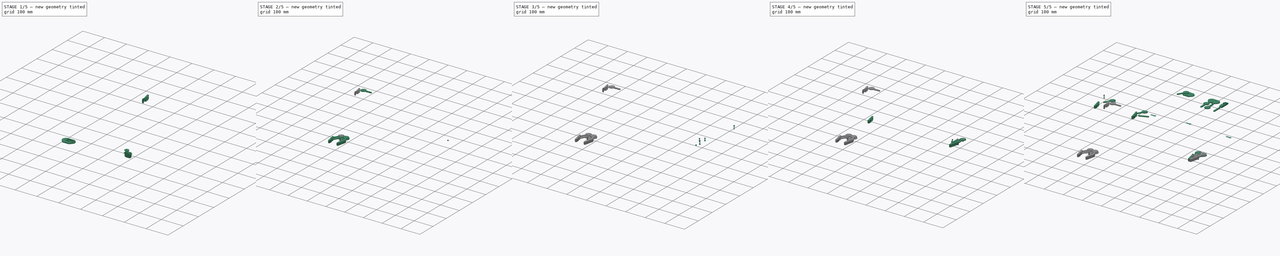
[diagram: build sequence overview — one tinted view per stage of 5, left to right]
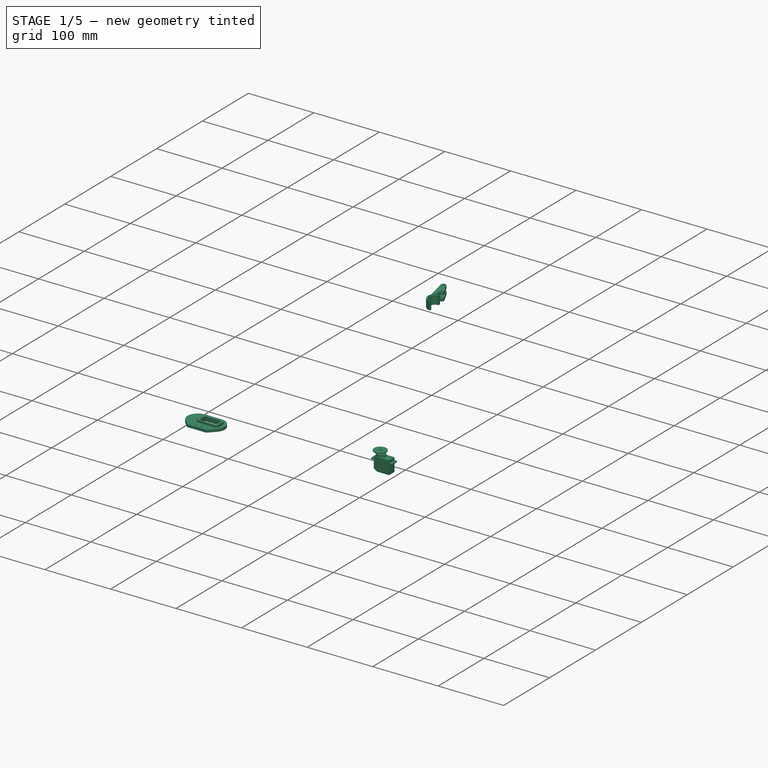
[diagram: stage 1 of 5 — iso view after this stage's code; geometry added in this stage tinted green]
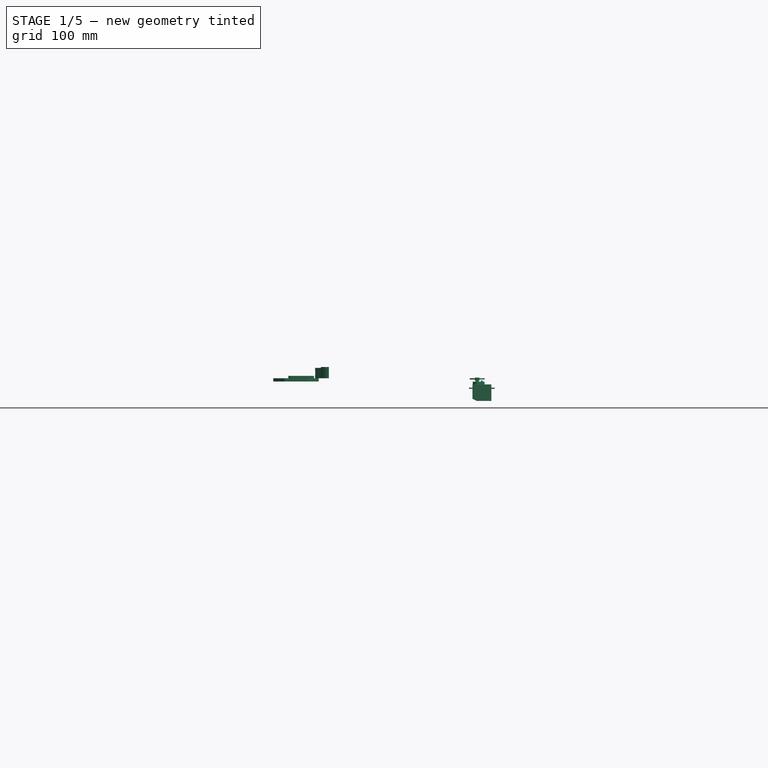
[diagram: stage 1 of 5 — front view after this stage's code; geometry added in this stage tinted green]
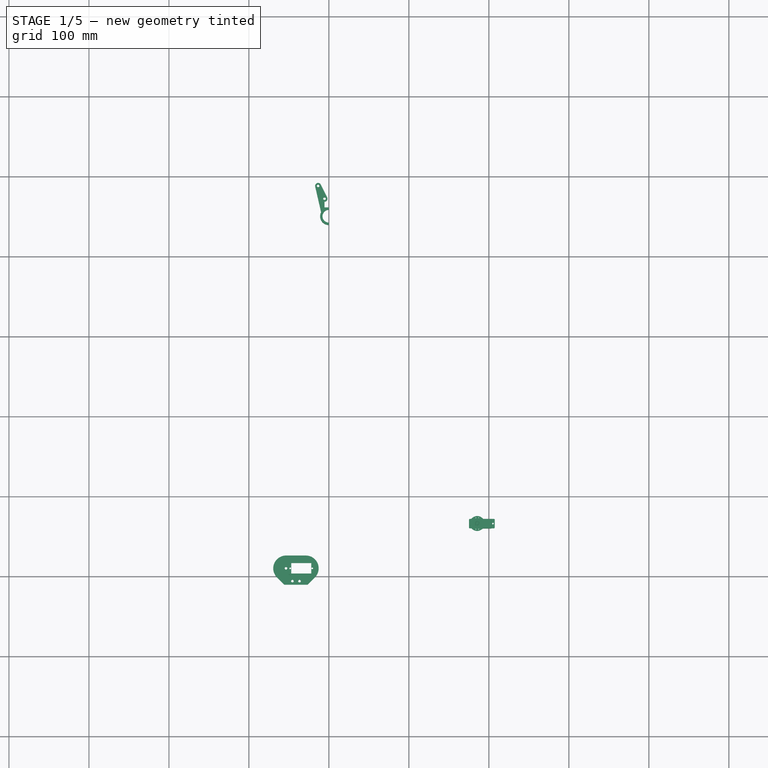
[diagram: stage 1 of 5 — top view after this stage's code; geometry added in this stage tinted green]
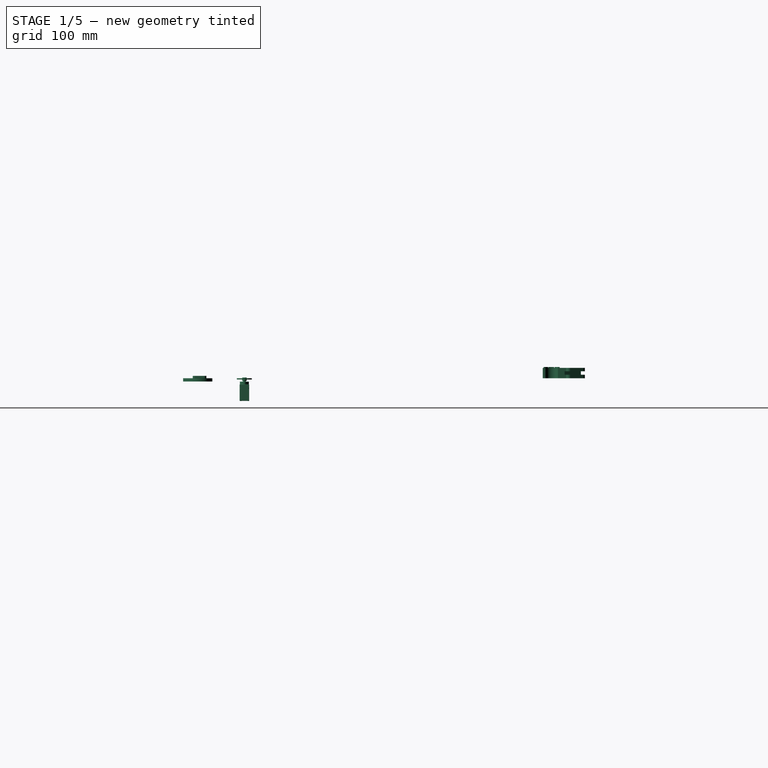
[diagram: stage 1 of 5 — right view after this stage's code; geometry added in this stage tinted green]
FCSTD DOCUMENT  (FreeCAD 0.19R24267 +99 (Git))
Label: robot-claw
License: All rights reserved
LicenseURL: http://en.wikipedia.org/wiki/All_rights_reserved
objects: Part::FeaturePython×162, Part::Part2DObjectPython×89, Part::Feature×83, App::Annotation×64, App::DocumentObjectGroup×21, Part::MultiFuse×14, Part::Cut×14, Part::Cylinder×9, Part::Box×8, Sketcher::SketchObject×7, PartDesign::Pad×6, Part::Extrusion×2, PartDesign::Pocket×1, Part::Fillet×1
note: 403 computed .brp shape members not serialized (recipe doc carries the construction recipe); baked Part::Feature solids carry a one-line shape summary decoded from their .brp

FEATURE [Sketcher::SketchObject] Sketch  label="finger-sketch"
  FullyConstrained = false
  MapMode = 5
  sketch-geometry (9):
    g0: LineSegment StartX=0 StartY=0 StartZ=0 EndX=0 EndY=18 EndZ=0
    g1: LineSegment StartX=0 StartY=18 StartZ=0 EndX=-5.5 EndY=18 EndZ=0
    g2: LineSegment StartX=-5.5 StartY=18 StartZ=0 EndX=-5.5 EndY=25.2 EndZ=0
    g3: LineSegment StartX=-17.1064 StartY=44.073 StartZ=0 EndX=-7 EndY=0 EndZ=0
    g4: LineSegment StartX=-7 StartY=0 StartZ=0 EndX=0 EndY=0 EndZ=0
    g5: ArcOfCircle CenterX=-13.5 CenterY=44.9 CenterZ=0 NormalX=0 NormalY=0 NormalZ=1 AngleXU=0 Radius=3.7 StartAngle=0.463648 EndAngle=3.36701
    g6: ArcOfCircle CenterX=-5.5 CenterY=28.9 CenterZ=0 NormalX=0 NormalY=0 NormalZ=1 AngleXU=0 Radius=3.7 StartAngle=4.71239 EndAngle=6.74684
    g7: LineSegment StartX=-10.1906 StartY=46.5547 StartZ=0 EndX=-2.19063 EndY=30.5547 EndZ=0
    g8: Circle CenterX=-5.5 CenterY=28.9 CenterZ=0 NormalX=0 NormalY=0 NormalZ=1 AngleXU=0 Radius=3.7
  constraints (27):
    c: Vertical(g0)
    c: Coincident(g0,g1)
    c: Horizontal(g1)
    c: Coincident(g1,g2)
    c: Coincident(g3,g4)
    c: Coincident(g4,g0)
    c: Horizontal(g4)
    c: Coincident(g5,g3)
    c: Radius(g5) = 3.7
    c: Coincident(g6,g2)
    c: Coincident(g7,g5)
    c: Coincident(g7,g6)
    c: Equal(g6,g5)
    c: Tangent(g3,g5)
    c: Tangent(g7,g5)
    c: Tangent(g6,g7)
    c: Vertical(g2)
    c: DistanceY(g0) = 18
    c: DistanceX(g4) = 7
    c: DistanceX(g6,g5) = -8
    c: DistanceY(g6,g5) = 16
    c: PointOnObject(g6,g2)
    c: DistanceX(g1) = -5.5
    c: DistanceY(g2,g1) = -7.2
    c: Coincident(g0,g-1)
    c: Coincident(g8,g6)
    c: Equal(g6,g8)
FEATURE [PartDesign::Pad] Pad001  label="finger-body"
  AllowMultiFace = false
  Direction = (1,1,1)
  Length = 13
  Length2 = 100
  Profile = -> Sketch
  Type = 0
FEATURE [Sketcher::SketchObject] Sketch001
  ExternalGeometry = -> [Pad001]
  FullyConstrained = false
  MapMode = 5
  Placement = pos=(10.4694,5.23469,0) rot=(0.400447,0.647936,0.647936;2.37981rad)
  Support = -> [Pad001]
  sketch-geometry (6):
    g0: LineSegment StartX=23.2529 StartY=8.7 StartZ=0 EndX=51.2529 EndY=8.7 EndZ=0
    g1: LineSegment StartX=51.2529 StartY=8.7 StartZ=0 EndX=51.2529 EndY=4.3 EndZ=0
    g2: LineSegment StartX=51.2529 StartY=4.3 StartZ=0 EndX=23.2529 EndY=4.3 EndZ=0
    g3: LineSegment StartX=23.2529 StartY=4.3 StartZ=0 EndX=23.2529 EndY=8.7 EndZ=0
    g4: LineSegment StartX=23.2529 StartY=6.5 StartZ=0 EndX=51.2529 EndY=6.5 EndZ=0
    g5: LineSegment StartX=37.2529 StartY=13 StartZ=0 EndX=37.2529 EndY=0 EndZ=0
  constraints (18):
    c: Coincident(g0,g1)
    c: Coincident(g1,g2)
    c: Coincident(g2,g3)
    c: Coincident(g3,g0)
    c: Horizontal(g0)
    c: Horizontal(g2)
    c: Vertical(g1)
    c: Vertical(g3)
    c: PointOnObject(g4,g3)
    c: PointOnObject(g4,g1)
    c: Symmetric(g2,g0,g4)
    c: DistanceY(g1) = -4.4
    c: PointOnObject(g5,g-3)
    c: PointOnObject(g5,g-1)
    c: Symmetric(g-3,g-3,g5)
    c: Symmetric(g4,g4,g5)
    c: DistanceX(g2) = -28
    c: Symmetric(g5,g5,g4)
FEATURE [PartDesign::Pocket] Pocket  label="finger"
  AllowMultiFace = false
  Length = 7.4
  Length2 = 100
  Profile = -> Sketch001
  Type = 0
FEATURE [Part::Cylinder] Cylinder  label="finger-drill-master"
  Angle = 360
  AttacherType = Attacher::AttachEngine3D
  Height = 30
  Placement = pos=(0,0,-8) rot=(0,0,1;0rad)
  Radius = 1.6
FEATURE [Part::FeaturePython] Clone001  label="finger-claw-drill-1"  # Draft clone (typed FeaturePython)
  Objects = -> [Cylinder]
  Placement = pos=(-5.5,28.9,-8) rot=(0,0,1;0rad)
  Scale = (1,1,1)
FEATURE [Part::FeaturePython] Clone002  label="finger-claw-drill-2"  # Draft clone (typed FeaturePython)
  Objects = -> [Cylinder]
  Placement = pos=(-13.5,44.9,-8) rot=(0,0,1;0rad)
  Scale = (1,1,1)
FEATURE [Part::MultiFuse] Fusion  label="finger-drills"
  Shapes = -> [Clone002,Clone001]
FEATURE [Part::Cut] Cut  label="finger-final-src"
  Base = -> Pocket
  Placement = pos=(0,-57,0) rot=(0,0,1;0rad)
  Tool = -> Fusion
FEATURE [Part::Cylinder] Cylinder001  label="finger-drill-master001"
  Angle = 360
  AttacherType = Attacher::AttachEngine3D
  Height = 30
  Placement = pos=(0,0,-8) rot=(0,0,1;0rad)
  Radius = 1.6
FEATURE [Sketcher::SketchObject] Sketch005  label="base-sketch"
  FullyConstrained = false
  MapMode = 5
  sketch-geometry (10):
    g0: LineSegment StartX=14.5274 StartY=-4.5 StartZ=0 EndX=-14.5274 EndY=-4.5 EndZ=0
    g1: LineSegment StartX=-14.5274 StartY=-4.5 StartZ=0 EndX=-23.7137 EndY=4.68629 EndZ=0
    g2: LineSegment StartX=14.5274 StartY=-4.5 StartZ=0 EndX=23.7137 EndY=4.68629 EndZ=0
    g3: ArcOfCircle CenterX=-12.4 CenterY=16 CenterZ=0 NormalX=0 NormalY=0 NormalZ=1 AngleXU=0 Radius=16 StartAngle=1.5708 EndAngle=3.92699
    g4: ArcOfCircle CenterX=12.4 CenterY=16 CenterZ=0 NormalX=0 NormalY=0 NormalZ=1 AngleXU=0 Radius=16 StartAngle=5.49779 EndAngle=7.85398
    g5: LineSegment StartX=-12.4 StartY=32 StartZ=0 EndX=12.4001 EndY=32 EndZ=0
    g6: LineSegment StartX=-12.4 StartY=16 StartZ=0 EndX=12.4 EndY=16 EndZ=0
    g7: LineSegment StartX=-12.4 StartY=16 StartZ=0 EndX=-4.4 EndY=0 EndZ=0
    g8: LineSegment StartX=-4.4 StartY=0 StartZ=0 EndX=4.4 EndY=0 EndZ=0
    g9: LineSegment StartX=4.4 StartY=0 StartZ=0 EndX=12.4 EndY=16 EndZ=0
  constraints (29):
    c: Horizontal(g0)
    c: Coincident(g0,g1)
    c: Coincident(g0,g2)
    c: Coincident(g3,g1)
    c: Horizontal(g5)
    c: Coincident(g5,g3)
    c: Coincident(g5,g4)
    c: Horizontal(g6)
    c: Coincident(g7,g8)
    c: Horizontal(g8)
    c: Coincident(g8,g9)
    c: Coincident(g9,g6)
    c: Coincident(g7,g6)
    c: PointOnObject(g8,g-1)
    c: Symmetric(g7,g8,g-2)
    c: Symmetric(g6,g6,g-2)
    c: DistanceX(g8) = 8.8
    c: DistanceX(g6) = 24.8
    c: DistanceY(g6,g8) = -16
    c: Symmetric(g0,g0,g-2)
    c: DistanceY(g8,g0) = -4.5
    c: Angle(g-1,g1) = 2.35619
    c: Coincident(g3,g6)
    c: Coincident(g4,g6)
    c: Tangent(g1,g3)
    c: Coincident(g2,g4)
    c: Symmetric(g1,g2,g-2)
    c: Tangent(g5,g3)
    c: Radius(g3) = 16
FEATURE [PartDesign::Pad] Pad005  label="base-body"
  AllowMultiFace = false
  Direction = (1,1,1)
  Length = 4
  Length2 = 100
  Profile = -> Sketch005
  Type = 0
FEATURE [Part::FeaturePython] Clone019  label="base-drill-1"  # Draft clone (typed FeaturePython)
  Objects = -> [Cylinder001]
  Placement = pos=(-12.4012,16,-8) rot=(0,0,1;0rad)
  Scale = (1,1,1)
FEATURE [Part::FeaturePython] Clone020  label="base-drill-2"  # Draft clone (typed FeaturePython)
  Objects = -> [Cylinder001]
  Placement = pos=(-4.40118,-8.68002e-11,-8) rot=(0,0,1;0rad)
  Scale = (1,1,1)
FEATURE [Part::FeaturePython] Clone021  label="base-drill-3"  # Draft clone (typed FeaturePython)
  Objects = -> [Cylinder001]
  Placement = pos=(12.4011,16,-8) rot=(0,0,1;0rad)
  Scale = (1,1,1)
FEATURE [Part::FeaturePython] Clone022  label="base-drill-4"  # Draft clone (typed FeaturePython)
  Objects = -> [Cylinder001]
  Placement = pos=(4.40118,-5.30813e-11,-8) rot=(0,0,1;0rad)
  Scale = (1,1,1)
FEATURE [Part::MultiFuse] Fusion007  label="base-drills"
  Shapes = -> [Clone019,Clone021,Clone020,Clone022]
FEATURE [Part::Cut] Cut004  label="base-copia"
  Base = -> Pad005
  Tool = -> Fusion007
FEATURE [App::Annotation] Text056
  LabelText = STEP 4
  Position = (575.961,51.0565,0)
FEATURE [App::DocumentObjectGroup] Group013  label="step-4"
  Group = -> [Clone075,Clone076,Clone077,Clone078,Clone079,Line033,Clone080,Clone081,Line034,Clone082,Clone083,Clone084,Clone085,Clone086,Clone087,Clone088,Clone089,Text055,Rectangle009,Text056]
FEATURE [Part::Part2DObjectPython] Rectangle010  # Draft 2D object (typed FeaturePython)
  ChamferSize = 0
  FilletRadius = 0
  Height = -182
  Length = 158
  MakeFace = false
  MapMode = 5
  Placement = pos=(-65.1976,-126.066,-4) rot=(0,0,1;0rad)
FEATURE [App::Annotation] Text057
  LabelText = STEP 5
  Position = (-4.0388,-147.943,0)
FEATURE [App::DocumentObjectGroup] Group014  label="Step-5"
  Group = -> [Clone102,Clone103,Clone104,Clone105,Clone106,Clone107,Clone108,Clone109,Clone110,Clone111,Clone112,Clone113,Rectangle010,Text057]
FEATURE [Part::Part2DObjectPython] Rectangle011  # Draft 2D object (typed FeaturePython)
  ChamferSize = 0
  FilletRadius = 0
  Height = -184
  Length = 173
  MakeFace = false
  MapMode = 5
  Placement = pos=(118.802,-125.066,-4) rot=(0,0,1;0rad)
FEATURE [App::DocumentObjectGroup] Group015  label="Step-6"
  Group = -> [Clone115,Clone116,Clone117,Clone118,Clone119,Clone120,Clone121,Clone122,Clone123,Clone124,Clone125,Clone126,Clone127,Clone128,Clone129,Clone130,Clone131,Clone132,Clone133,Clone134,Clone135,Rectangle011]
FEATURE [Part::Part2DObjectPython] Rectangle012  # Draft 2D object (typed FeaturePython)
  ChamferSize = 0
  FilletRadius = 0
  Height = -184
  Length = 162
  MakeFace = false
  MapMode = 5
  Placement = pos=(318.802,-125.066,-4) rot=(0,0,1;0rad)
FEATURE [App::Annotation] Text058
  LabelText = STEP 8
  Position = (580.961,-147.943,0)
FEATURE [Part::Part2DObjectPython] Rectangle013  # Draft 2D object (typed FeaturePython)
  ChamferSize = 0
  FilletRadius = 0
  Height = -181
  Length = 172
  MakeFace = false
  MapMode = 5
  Placement = pos=(505.802,-127.066,-4) rot=(0,0,1;0rad)
FEATURE [App::DocumentObjectGroup] Group017  label="Step-8"
  Group = -> [Clone157,Clone158,Clone159,Clone160,Clone161,Clone162,Clone163,Clone164,Clone165,Clone166,Clone167,Clone168,Clone169,Clone170,Clone171,Clone172,Clone173,Clone174,Clone175,Clone176,Clone177,Clone178,Clone179,Rectangle013,Text058]
FEATURE [App::Annotation] Text059
  LabelText = STEP 7
  Position = (384.961,-147.943,0)
FEATURE [App::DocumentObjectGroup] Group016  label="Step-7"
  Group = -> [Clone136,Clone137,Clone138,Clone139,Clone140,Clone141,Clone142,Clone143,Clone144,Clone145,Clone146,Clone147,Clone148,Clone149,Clone150,Clone151,Clone152,Clone153,Clone154,Clone155,Clone156,Rectangle012,Text059]
FEATURE [App::Annotation] Text060
  LabelText = Build instructions
  Position = (201.802,109.934,-4)
FEATURE [App::DocumentObjectGroup] Group018  label="aux"
  Group = -> [Pad]
FEATURE [Part::Part2DObjectPython] Rectangle014  # Draft 2D object (typed FeaturePython)
  ChamferSize = 0
  FilletRadius = 0
  Height = -488
  Length = 829
  MakeFace = false
  MapMode = 5
  Placement = pos=(-102.198,146.934,-4) rot=(0,0,1;0rad)
FEATURE [App::DocumentObjectGroup] Group009  label="Build-instructions"
  Group = -> [Group010,Group011,Group012,Group013,Group014,Group015,Group016,Group017,Text060,Rectangle014]
FEATURE [Part::Feature] Part__Feature003  label="Emax-es08A-final"
  shape: bbox 32.2 x 12.1 x 25.4 mm, 95 faces (baked)
FEATURE [Part::Feature] Part__Feature004  label="Emax-es08A-final001"
  shape: bbox 3.784 x 3.784 x 8.4 mm, 50 faces (baked)
FEATURE [Part::Feature] Part__Feature005  label="Emax-es08A-final002"
  shape: bbox 1.8 x 1.8 x 15.3 mm, 18 faces (baked)
FEATURE [Part::Feature] Part__Feature006  label="Emax-es08A-final003"
  shape: bbox 1.8 x 1.8 x 15.3 mm, 18 faces (baked)
FEATURE [Part::Feature] Part__Feature007  label="Emax-es08A-final004"
  shape: bbox 1.8 x 1.8 x 15.3 mm, 18 faces (baked)
FEATURE [Part::Feature] Part__Feature008  label="Emax-es08A-final005"
  shape: bbox 1.8 x 1.8 x 15.3 mm, 18 faces (baked)
FEATURE [Part::MultiFuse] Fusion009  label="servo"
  Placement = pos=(72.7547,-498,1.99999) rot=(0,0.707107,0.707107;3.14159rad)
  Shapes = -> [Part__Feature003,Part__Feature004,Part__Feature005,Part__Feature006,Part__Feature007,Part__Feature008]
FEATURE [Part::Feature] Part__Feature009  label="horn"
  Placement = pos=(67.0047,-481.5,1.99999) rot=(-1,0,0;1.5708rad)
  shape: bbox 18.7 x 4.1 x 18.7 mm, 22 faces (baked)
FEATURE [Part::Box] Box  label="Cube"
  AttacherType = Attacher::AttachEngine3D
  Height = 6
  Length = 32
  Placement = pos=(-22.6,7.5,-3) rot=(0,0,1;0rad)
  Width = 17
FEATURE [Part::MultiFuse] Fusion010
  Shapes = -> [Cut004,Box]
FEATURE [Part::Box] Box001  label="Cube001"
  AttacherType = Attacher::AttachEngine3D
  Height = 16
  Length = 25
  Placement = pos=(-19.1,9.5,-9) rot=(0,0,1;0rad)
  Width = 13
FEATURE [Part::Cut] Cut005
  Base = -> Fusion010
  Tool = -> Box001
FEATURE [App::DocumentObjectGroup] Group004  label="base-src"
  Group = -> [Cut005]
FEATURE [Part::Fillet] Fillet
  Base = -> Cut005
  Edges = 4 edges r=3: [Edge9,Edge11,Edge12,Edge14]
FEATURE [Part::Cylinder] Cylinder002  label="Cylinder"
  Angle = 360
  AttacherType = Attacher::AttachEngine3D
  Height = 10
  Placement = pos=(7.2,16,-5) rot=(0,0,1;0rad)
  Radius = 1.1
FEATURE [Part::Cylinder] Cylinder003  label="Cylinder001"
  Angle = 360
  AttacherType = Attacher::AttachEngine3D
  Height = 10
  Placement = pos=(-20.4,16,-5) rot=(0,0,1;0rad)
  Radius = 1.1
FEATURE [Part::MultiFuse] Fusion011
  Shapes = -> [Cylinder002,Cylinder003]
FEATURE [Part::Cut] Cut006  label="base-servo"
  Base = -> Fillet
  Placement = pos=(-41.198,-506.066,0) rot=(0,1,0;3.14159rad)
  Tool = -> Fusion011
FEATURE [Part::Part2DObjectPython] Rectangle015  # Draft 2D object (typed FeaturePython)
  ChamferSize = 0
  FilletRadius = 0
  Height = -170.265
  Length = 374.167
  MakeFace = false
  MapMode = 5
  Placement = pos=(-102,-373,-4) rot=(0,0,1;0rad)
FEATURE [App::Annotation] Text061
  LabelText = Automatic version
  Position = (-44.1976,-406.066,-4)
FEATURE [App::Annotation] Text062
  LabelText = You can automate the claw for use it in small robots
  Position = (-77,-436,0)
FEATURE [App::Annotation] Text063
  LabelText = All you need are this two modded parts and a micro servo
  Position = (-77,-443,0)
FEATURE [Part::FeaturePython] Clone187  label="Clone of horn"  # Draft clone (typed FeaturePython)
  Objects = -> [Part__Feature009]
  Placement = pos=(185.4,-434,-1.5) rot=(0,0,1;0rad)
  Scale = (1,1,1)
FEATURE [Part::FeaturePython] Clone188  label="Clone of servo"  # Draft clone (typed FeaturePython)
  Objects = -> [Fusion009]
  Placement = pos=(191.25,-434,-18) rot=(0,0,1;3.14159rad)
  Scale = (1,1,1)
FEATURE [App::DocumentObjectGroup] Group019  label="Servo-version"
  Group = -> [Clone180,Clone181,Clone182,Clone183,Clone184,Chamfer024,Chamfer025,Chamfer026,Chamfer027,Compound028,Compound029,Compound030,Compound031,Compound032,Compound033,Compound035,Chamfer029,Chamfer030,Chamfer031,Group020,Clone185,Clone186,Clone188,Clone187,Text063,Text062,Text061,Rectangle015]
FEATURE [Part::Cylinder] Cylinder007  label="Cilindro"
  Angle = 360
  AttacherType = Attacher::AttachEngine3D
  Height = 14
  Placement = pos=(0,-50,0) rot=(0,0,1;0rad)
  Radius = 8
FEATURE [Part::Cylinder] Cylinder008  label="Cilindro001"
  Angle = 360
  AttacherType = Attacher::AttachEngine3D
  Height = 13
  Placement = pos=(0,-50,0) rot=(0,0,1;0rad)
  Radius = 11
FEATURE [Part::Box] Box002  label="Cubo"
  AttacherType = Attacher::AttachEngine3D
  Height = 15
  Length = 12
  Placement = pos=(0,-65,0) rot=(0,0,1;0rad)
  Width = 32
FEATURE [Part::MultiFuse] Fusion012
  Shapes = -> [Cylinder008,Cut]
FEATURE [Part::MultiFuse] Fusion013
  Shapes = -> [Cylinder007,Box002]
FEATURE [Part::Cut] Cut011
  Base = -> Fusion012
  Tool = -> Fusion013
FEATURE [Part::FeaturePython] Tube  # WARN: FeaturePython — macro-defined, semantics opaque (R4)
  AttacherType = Attacher::AttachEngine3D
  Height = 14
  InnerRadius = 9
  OuterRadius = 10
  Placement = pos=(0,-50,0) rot=(0,0,1;0rad)
FEATURE [Part::Box] Box003  label="Cubo001"
  AttacherType = Attacher::AttachEngine3D
  Height = 15
  Length = 12
  Placement = pos=(0,-65,0) rot=(0,0,1;0rad)
  Width = 32
FEATURE [Part::Cut] Cut012
  Base = -> Tube
  Tool = -> Box003
FEATURE [Part::MultiFuse] Fusion014
  Shapes = -> [Cut012,Cut011]
FEATURE [Part::Box] Box004  label="Cubo002"
  AttacherType = Attacher::AttachEngine3D
  Height = 4
  Length = 1
  Placement = pos=(-3,-44,13) rot=(0,0,1;0.279253rad)
  Width = 5
FEATURE [Part::Box] Box005  label="Cubo003"
  AttacherType = Attacher::AttachEngine3D
  Height = 4
  Length = 1
  Placement = pos=(-7,-48,13) rot=(0,0,1;1.16937rad)
  Width = 5
FEATURE [Part::Box] Box006  label="Cubo004"
  AttacherType = Attacher::AttachEngine3D
  Height = 4
  Length = 1
  Placement = pos=(-5,-61,13) rot=(0,0,1;-0.261799rad)
  Width = 5
FEATURE [Part::Box] Box007  label="Cubo005"
  AttacherType = Attacher::AttachEngine3D
  Height = 4
  Length = 1
  Placement = pos=(-11,-55,13) rot=(0,0,1;-1.0472rad)
  Width = 5
FEATURE [Part::MultiFuse] Fusion015
  Shapes = -> [Box006,Box007,Box005,Box004]
FEATURE [Part::Cut] Cut013  label="claw-finger"
  Base = -> Fusion014
  Tool = -> Fusion015
FEATURE [App::DocumentObjectGroup] Group  label="claw-finger-src"
  Group = -> [Pad001,Cylinder,Cylinder001,Cut013]
FEATURE [App::DocumentObjectGroup] Group005  label="claw-src"
  Group = -> [Group,Group002,Group003,Group004]
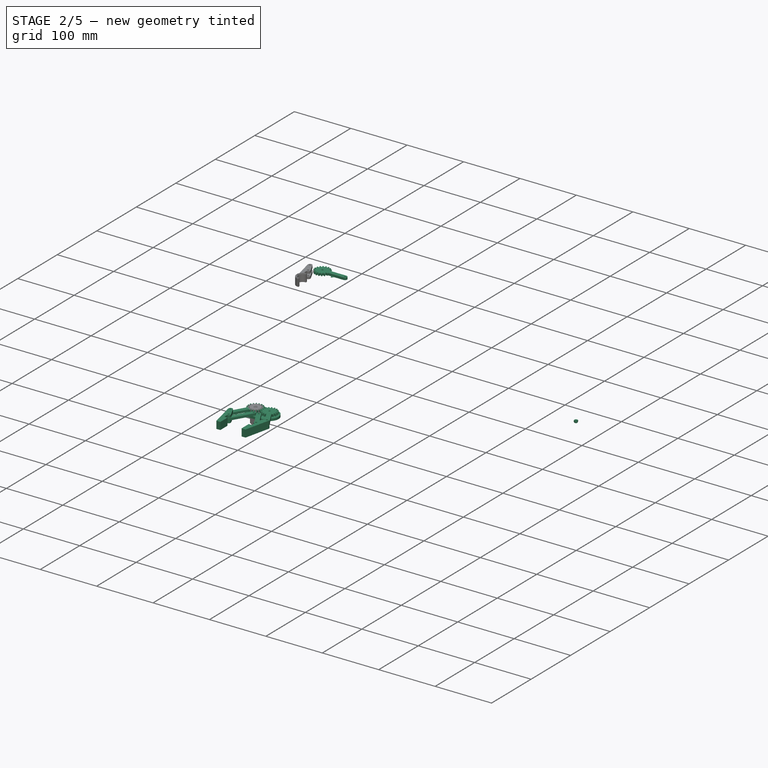
[diagram: stage 2 of 5 — iso view after this stage's code; geometry added in this stage tinted green]
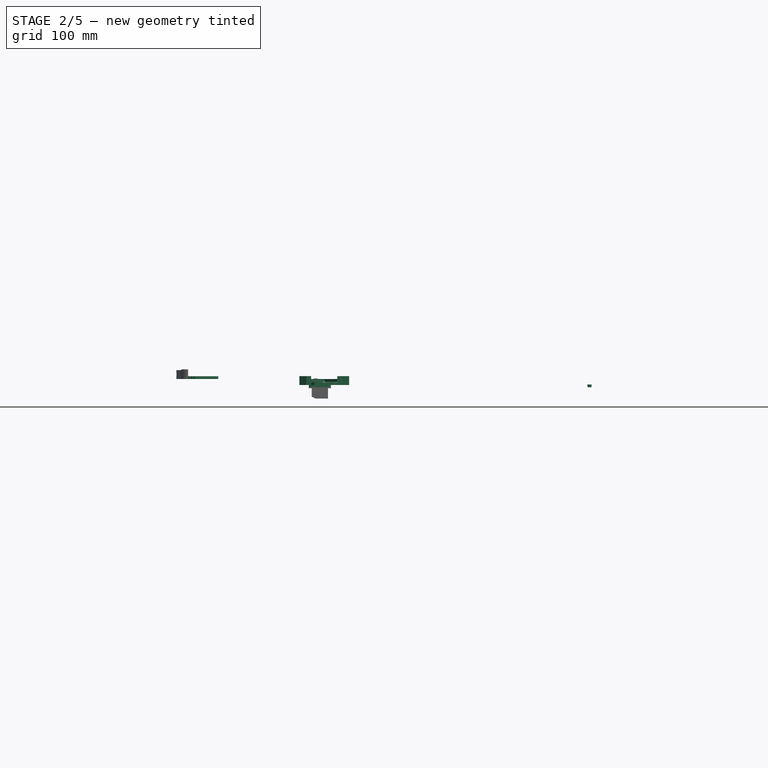
[diagram: stage 2 of 5 — front view after this stage's code; geometry added in this stage tinted green]
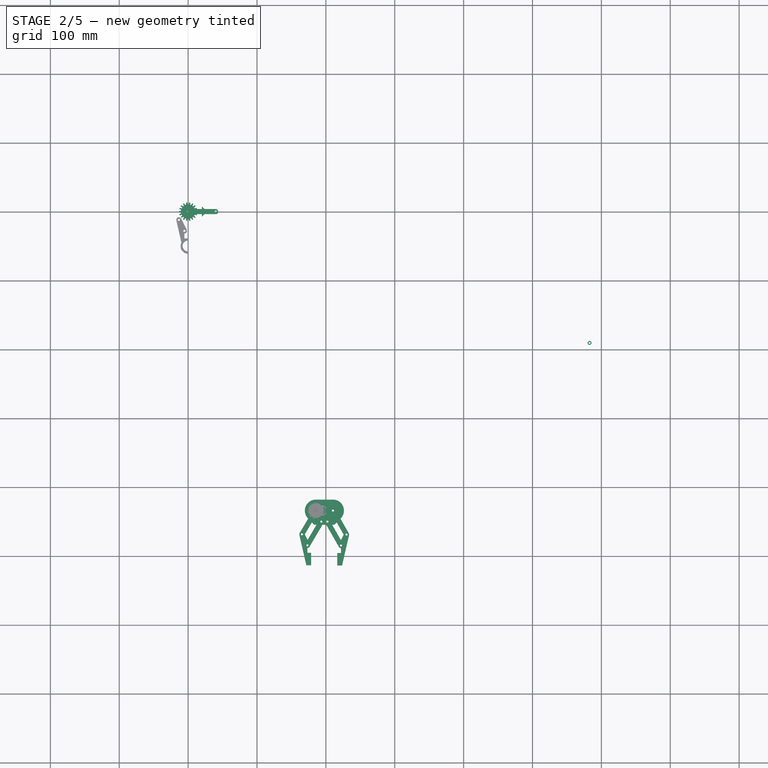
[diagram: stage 2 of 5 — top view after this stage's code; geometry added in this stage tinted green]
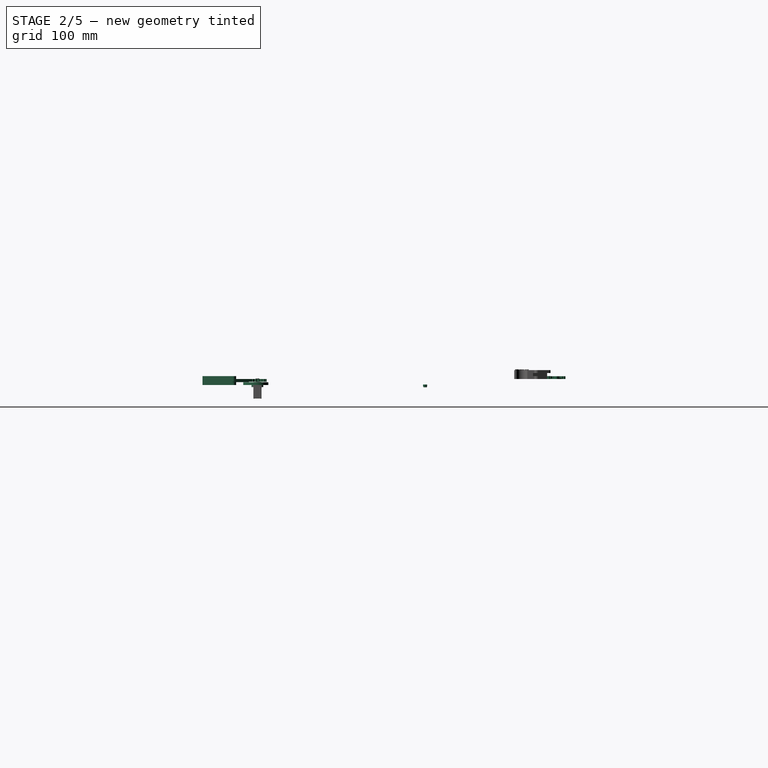
[diagram: stage 2 of 5 — right view after this stage's code; geometry added in this stage tinted green]
FEATURE [Part::FeaturePython] Clone003  label="left-finger"  # Draft clone (typed FeaturePython)
  Objects = -> [Cut]
  Placement = pos=(192.603,185.566,0) rot=(0,0,1;0rad)
  Scale = (1,1,1)
FEATURE [Sketcher::SketchObject] Sketch002  label="link-body-sketch"
  FullyConstrained = false
  MapMode = 5
  sketch-geometry (4):
    g0: ArcOfCircle CenterX=0 CenterY=0 CenterZ=0 NormalX=0 NormalY=0 NormalZ=1 AngleXU=0 Radius=3.7 StartAngle=1.5708 EndAngle=4.71239
    g1: ArcOfCircle CenterX=40 CenterY=0 CenterZ=0 NormalX=0 NormalY=0 NormalZ=1 AngleXU=0 Radius=3.7 StartAngle=4.71239 EndAngle=7.85398
    g2: LineSegment StartX=0 StartY=-3.7 StartZ=0 EndX=40 EndY=-3.7 EndZ=0
    g3: LineSegment StartX=0 StartY=3.7 StartZ=0 EndX=40 EndY=3.7 EndZ=0
  constraints (9):
    c: Tangent(g0,g3) = 1.5708
    c: Tangent(g0,g2) = -1.5708
    c: Tangent(g2,g1) = -1.5708
    c: Tangent(g3,g1) = 1.5708
    c: Horizontal(g2)
    c: Equal(g0,g1)
    c: Coincident(g0,g-1)
    c: Radius(g0) = 3.7
    c: DistanceX(g2) = 40
FEATURE [PartDesign::Pad] Pad002  label="link-body"
  AllowMultiFace = false
  Direction = (1,1,1)
  Length = 4
  Length2 = 100
  Profile = -> Sketch002
  Type = 0
FEATURE [Part::FeaturePython] Clone005  label="link-drill-1"  # Draft clone (typed FeaturePython)
  Objects = -> [Cylinder]
  Placement = pos=(0,0,-8) rot=(0,0,1;0rad)
  Scale = (1,1,1)
FEATURE [Part::FeaturePython] Clone006  label="link-drill-002"  # Draft clone (typed FeaturePython)
  Objects = -> [Cylinder]
  Placement = pos=(40,3e-16,-8) rot=(0,0,1;0rad)
  Scale = (1,1,1)
FEATURE [Part::MultiFuse] Fusion001
  Shapes = -> [Clone005,Clone006]
FEATURE [Part::Cut] Cut001  label="link-master"
  Base = -> Pad002
  Tool = -> Fusion001
FEATURE [App::DocumentObjectGroup] Group002  label="link-src"
  Group = -> [Cut001]
FEATURE [Part::FeaturePython] Clone007  label="left-link"  # Draft clone (typed FeaturePython)
  Objects = -> [Cut001]
  Placement = pos=(187.103,214.466,4.3) rot=(0,0,1;1.03858rad)
  Scale = (1,1,1)
FEATURE [Part::Part2DObjectPython] InvoluteGear  # Draft 2D object (typed FeaturePython)
  ExternalGear = true
  HighPrecision = true
  MapMode = 5
  Modules = 1.35
  NumberOfTeeth = 18
  PressureAngle = 12
FEATURE [Part::Extrusion] Extrude
  Base = -> InvoluteGear
  Dir = (0,0,4)
  DirMode = 0
  FaceMakerClass = Part::FaceMakerExtrusion
  LengthFwd = 0
  LengthRev = 0
  Solid = true
  Symmetric = false
FEATURE [Sketcher::SketchObject] Sketch003  label="link-body-sketch001"
  FullyConstrained = false
  MapMode = 5
  sketch-geometry (4):
    g0: ArcOfCircle CenterX=0 CenterY=0 CenterZ=0 NormalX=0 NormalY=0 NormalZ=1 AngleXU=0 Radius=3.7 StartAngle=1.5708 EndAngle=4.71239
    g1: ArcOfCircle CenterX=40 CenterY=0 CenterZ=0 NormalX=0 NormalY=0 NormalZ=1 AngleXU=0 Radius=3.7 StartAngle=4.71239 EndAngle=7.85398
    g2: LineSegment StartX=0 StartY=-3.7 StartZ=0 EndX=40 EndY=-3.7 EndZ=0
    g3: LineSegment StartX=0 StartY=3.7 StartZ=0 EndX=40 EndY=3.7 EndZ=0
  constraints (9):
    c: Tangent(g0,g3) = 1.5708
    c: Tangent(g0,g2) = -1.5708
    c: Tangent(g2,g1) = -1.5708
    c: Tangent(g3,g1) = 1.5708
    c: Horizontal(g2)
    c: Equal(g0,g1)
    c: Coincident(g0,g-1)
    c: Radius(g0) = 3.7
    c: DistanceX(g2) = 40
FEATURE [PartDesign::Pad] Pad003  label="link-body001"
  AllowMultiFace = false
  Direction = (1,1,1)
  Length = 4
  Length2 = 100
  Profile = -> Sketch003
  Type = 0
FEATURE [Part::MultiFuse] Fusion002
  Shapes = -> [Pad003,Extrude]
FEATURE [Part::FeaturePython] Clone010  label="gear-drill-1"  # Draft clone (typed FeaturePython)
  Objects = -> [Cylinder]
  Placement = pos=(0,0,-8) rot=(0,0,1;0rad)
  Scale = (1,1,1)
FEATURE [Part::FeaturePython] Clone011  label="gear-drill-2"  # Draft clone (typed FeaturePython)
  Objects = -> [Cylinder]
  Placement = pos=(40,3e-16,-8) rot=(0,0,1;0rad)
  Scale = (1,1,1)
FEATURE [Part::MultiFuse] Fusion003  label="gear-drills"
  Shapes = -> [Clone010,Clone011]
FEATURE [Part::Cut] Cut002  label="left-gear-copy"
  Base = -> Fusion002
  Tool = -> Fusion003
FEATURE [Part::Part2DObjectPython] InvoluteGear001  # Draft 2D object (typed FeaturePython)
  ExternalGear = true
  HighPrecision = true
  MapMode = 5
  Modules = 1.35
  NumberOfTeeth = 18
  Placement = pos=(0,0,0) rot=(0,0,-1;0.174533rad)
  PressureAngle = 12
FEATURE [Sketcher::SketchObject] Sketch004  label="link-body-sketch002"
  FullyConstrained = false
  MapMode = 5
  sketch-geometry (4):
    g0: ArcOfCircle CenterX=0 CenterY=0 CenterZ=0 NormalX=0 NormalY=0 NormalZ=1 AngleXU=0 Radius=3.7 StartAngle=1.5708 EndAngle=4.71239
    g1: ArcOfCircle CenterX=40 CenterY=0 CenterZ=0 NormalX=0 NormalY=0 NormalZ=1 AngleXU=0 Radius=3.7 StartAngle=4.71239 EndAngle=7.85398
    g2: LineSegment StartX=0 StartY=-3.7 StartZ=0 EndX=40 EndY=-3.7 EndZ=0
    g3: LineSegment StartX=0 StartY=3.7 StartZ=0 EndX=40 EndY=3.7 EndZ=0
  constraints (9):
    c: Tangent(g0,g3) = 1.5708
    c: Tangent(g0,g2) = -1.5708
    c: Tangent(g2,g1) = -1.5708
    c: Tangent(g3,g1) = 1.5708
    c: Horizontal(g2)
    c: Equal(g0,g1)
    c: Coincident(g0,g-1)
    c: Radius(g0) = 3.7
    c: DistanceX(g2) = 40
FEATURE [PartDesign::Pad] Pad004  label="link-body002"
  AllowMultiFace = false
  Direction = (1,1,1)
  Length = 4
  Length2 = 100
  Profile = -> Sketch004
  Type = 0
FEATURE [Part::FeaturePython] Clone013  label="gear-drill-003"  # Draft clone (typed FeaturePython)
  Objects = -> [Cylinder001]
  Placement = pos=(0,0,-8) rot=(0,0,1;0rad)
  Scale = (1,1,1)
FEATURE [Part::FeaturePython] Clone014  label="gear-drill-004"  # Draft clone (typed FeaturePython)
  Objects = -> [Cylinder001]
  Placement = pos=(40,3e-16,-8) rot=(0,0,1;0rad)
  Scale = (1,1,1)
FEATURE [Part::MultiFuse] Fusion005  label="gear-drills001"
  Shapes = -> [Clone013,Clone014]
FEATURE [Part::Extrusion] Extrude001
  Base = -> InvoluteGear001
  Dir = (0,0,4)
  DirMode = 0
  FaceMakerClass = Part::FaceMakerExtrusion
  LengthFwd = 0
  LengthRev = 0
  Solid = true
  Symmetric = false
FEATURE [Part::MultiFuse] Fusion006
  Shapes = -> [Pad004,Extrude001]
FEATURE [Part::Cut] Cut003  label="right-gear"
  Base = -> Fusion006
  Placement = pos=(12.4,16,4.5) rot=(0,0,-1;1.5708rad)
  Tool = -> Fusion005
FEATURE [Part::FeaturePython] Clone015  label="right-gear001"  # Draft clone (typed FeaturePython)
  Objects = -> [Cut003]
  Placement = pos=(224.203,264.934,4.7) rot=(0,0,-1;1.05416rad)
  Scale = (1,1,1)
FEATURE [Part::FeaturePython] Clone016  label="right-finger"  # Draft clone (typed FeaturePython)
  Objects = -> [Cut]
  Placement = pos=(230.462,185.254,13) rot=(0,1,0;3.14159rad)
  Scale = (1,1,1)
FEATURE [Part::FeaturePython] Clone017  label="right-link"  # Draft clone (typed FeaturePython)
  Objects = -> [Cut001]
  Placement = pos=(216.204,248.934,4.3) rot=(0,0,-1;1.05416rad)
  Scale = (1,1,1)
FEATURE [App::Annotation] Text040
  LabelText = STEP 1
  Position = (1,49,0)
FEATURE [Sketcher::SketchObject] Sketch006
  FullyConstrained = false
  MapMode = 5
  sketch-geometry (7):
    g0: LineSegment StartX=0 StartY=3 StartZ=0 EndX=20 EndY=3 EndZ=0
    g1: LineSegment StartX=20 StartY=3 StartZ=0 EndX=20 EndY=7.5 EndZ=0
    g2: LineSegment StartX=20 StartY=7.5 StartZ=0 EndX=27.5 EndY=0 EndZ=0
    g3: LineSegment StartX=27.5 StartY=0 StartZ=0 EndX=20 EndY=-7.5 EndZ=0
    g4: LineSegment StartX=20 StartY=-7.5 StartZ=0 EndX=20 EndY=-3 EndZ=0
    g5: LineSegment StartX=20 StartY=-3 StartZ=0 EndX=0 EndY=-3 EndZ=0
    g6: LineSegment StartX=0 StartY=-3 StartZ=0 EndX=0 EndY=3 EndZ=0
  constraints (21):
    c: PointOnObject(g0,g-2)
    c: Horizontal(g0)
    c: Coincident(g0,g1)
    c: Vertical(g1)
    c: Coincident(g3,g4)
    c: Vertical(g4)
    c: Coincident(g4,g5)
    c: PointOnObject(g5,g-2)
    c: Horizontal(g5)
    c: Coincident(g5,g6)
    c: Coincident(g6,g0)
    c: Symmetric(g5,g0,g-1)
    c: Symmetric(g0,g4,g-1)
    c: Coincident(g2,g1)
    c: PointOnObject(g2,g-1)
    c: Symmetric(g3,g1,g-1)
    c: Coincident(g2,g3)
    c: DistanceY(g0,g5) = -6
    c: Angle(g3,g4) = 0.785398
    c: DistanceY(g3,g1) = 15
    c: DistanceX(g0,g0) = 20
FEATURE [PartDesign::Pad] Pad  label="arrow-master"
  AllowMultiFace = false
  Direction = (1,1,1)
  Length = 1
  Length2 = 100
  Profile = -> Sketch006
  Type = 0
FEATURE [Part::FeaturePython] Clone113  label="Clone of Clone of Clone of Clone of Clone of Clone of Nyloc-nut-M019"  # WARN: FeaturePython — macro-defined, semantics opaque (R4)
  Placement = pos=(2.80235,-190.066,-8) rot=(0.369013,0.929424,0;3.14159rad)
  Scale = (1,1,1)
FEATURE [Part::FeaturePython] Clone126  label="Clone of Clone of Clone of Clone of Clone of Clone of Clone of Nyloc-nut-M019"  # Draft clone (typed FeaturePython)
  Objects = -> [Clone113]
  Placement = pos=(186.802,-197.533,-8) rot=(0.369013,0.929424,0;3.14159rad)
  Scale = (1,1,1)
FEATURE [Part::FeaturePython] Clone147  label="Clone of Clone of Clone of Clone of Clone of Clone of Clone of Clone of Nyloc-nut-M019"  # Draft clone (typed FeaturePython)
  Objects = -> [Clone126]
  Placement = pos=(387.802,-190.533,-8) rot=(0.369013,0.929424,0;3.14159rad)
  Scale = (1,1,1)
FEATURE [Part::FeaturePython] Clone168  label="Clone of Clone of Clone of Clone of Clone of Clone of Clone of Clone of Clone of Nyloc-nut-M019"  # Draft clone (typed FeaturePython)
  Objects = -> [Clone147]
  Placement = pos=(582.802,-190.533,-8) rot=(0.369013,0.929424,0;3.14159rad)
  Scale = (1,1,1)
FEATURE [Part::Cylinder] Cylinder004  label="Cylinder002"
  Angle = 360
  AttacherType = Attacher::AttachEngine3D
  Height = 10
  Placement = pos=(0,0,2) rot=(0,0,1;0rad)
  Radius = 10
FEATURE [Part::Cut] Cut007
  Base = -> Cut002
  Tool = -> Cylinder004
FEATURE [Part::Cylinder] Cylinder005  label="Cylinder003"
  Angle = 360
  AttacherType = Attacher::AttachEngine3D
  Height = 10
  Placement = pos=(0,0,-2) rot=(0,0,1;0rad)
  Radius = 4
FEATURE [Part::Cut] Cut008
  Base = -> Cut007
  Tool = -> Cylinder005
FEATURE [Part::Cylinder] Cylinder006  label="Cylinder004"
  Angle = 360
  AttacherType = Attacher::AttachEngine3D
  Height = 10
  Placement = pos=(0,7.5,-3) rot=(0,0,1;0rad)
  Radius = 0.8
FEATURE [Part::FeaturePython] Array  # Draft array (typed FeaturePython)
  Angle = 360
  ArrayType = 1
  Axis = (0,0,1)
  Base = -> Cylinder006
  Center = (0,0,0)
  Fuse = false
  IntervalAxis = (0,0,0)
  IntervalX = (1,0,0)
  IntervalY = (0,1,0)
  IntervalZ = (0,0,0)
  NumberPolar = 4
  NumberX = 0
  NumberY = 0
  NumberZ = 0
FEATURE [Part::Cut] Cut009  label="left-gear-servo"
  Base = -> Cut008
  Placement = pos=(18.401,-507.066,-4) rot=(0,0,1;1.22173rad)
  Tool = -> Array
FEATURE [Part::Cut] Cut010  label="left-gear"
  Base = -> Fusion002
  Tool = -> Fusion003
FEATURE [App::DocumentObjectGroup] Group003  label="gear-src"
  Group = -> [Cut003,Cut010]
FEATURE [Part::FeaturePython] Clone180  label="Clone of left-finger"  # Draft clone (typed FeaturePython)
  Objects = -> [Clone003]
  Placement = pos=(178.603,-513.434,-8.7) rot=(0,0,1;0rad)
  Scale = (1,1,1)
FEATURE [Part::FeaturePython] Clone181  label="Clone of left-link"  # Draft clone (typed FeaturePython)
  Objects = -> [Clone007]
  Placement = pos=(173.103,-484.534,-4.4) rot=(0,0,1;1.03858rad)
  Scale = (1,1,1)
FEATURE [Part::FeaturePython] Clone182  label="Clone of right-link"  # Draft clone (typed FeaturePython)
  Objects = -> [Clone017]
  Placement = pos=(202.204,-450.066,-4.4) rot=(0,0,-1;1.05416rad)
  Scale = (1,1,1)
FEATURE [Part::FeaturePython] Clone183  label="Clone of right-gear001"  # Draft clone (typed FeaturePython)
  Objects = -> [Clone015]
  Placement = pos=(210.203,-434.066,-4) rot=(0,0,-1;1.05416rad)
  Scale = (1,1,1)
FEATURE [Part::FeaturePython] Clone184  label="Clone of right-finger"  # Draft clone (typed FeaturePython)
  Objects = -> [Clone016]
  Placement = pos=(216.462,-513.746,4.3) rot=(0,1,0;3.14159rad)
  Scale = (1,1,1)
FEATURE [Part::Feature] Chamfer024  label="bolt-M3x16-013"
  Placement = pos=(165.103,-468.534,4.3) rot=(0,0,1;0rad)
  shape: bbox 5.5 x 5.5 x 19 mm, 16 faces (baked)
FEATURE [Part::Feature] Chamfer025  label="bolt-M3x16-014"
  Placement = pos=(173.103,-484.534,4.3) rot=(0,0,1;0rad)
  shape: bbox 5.5 x 5.5 x 19 mm, 16 faces (baked)
FEATURE [Part::Feature] Chamfer026  label="bolt-M3x16-015"
  Placement = pos=(229.962,-468.846,4.3) rot=(0,0,1;0rad)
  shape: bbox 5.5 x 5.5 x 19 mm, 16 faces (baked)
FEATURE [Part::Feature] Chamfer027  label="bolt-M3x16-016"
  Placement = pos=(221.962,-484.846,4.3) rot=(0,0,1;0rad)
  shape: bbox 5.5 x 5.5 x 19 mm, 16 faces (baked)
FEATURE [Part::Feature] Compound028  label="Nyloc-nut-M032"
  Placement = pos=(229.962,-468.846,-8.7) rot=(0.369013,0.929424,0;3.14159rad)
  shape: bbox 6.35 x 6.35 x 3.86 mm, 36 faces, 2 solids (baked)
FEATURE [Part::Feature] Compound029  label="Nyloc-nut-M033"
  Placement = pos=(221.962,-484.846,-8.7) rot=(0.369013,0.929424,0;3.14159rad)
  shape: bbox 6.35 x 6.35 x 3.86 mm, 36 faces, 2 solids (baked)
FEATURE [Part::Feature] Compound030  label="Nyloc-nut-M034"
  Placement = pos=(165.103,-468.534,-8.7) rot=(0.369013,0.929424,0;3.14159rad)
  shape: bbox 6.35 x 6.35 x 3.86 mm, 36 faces, 2 solids (baked)
FEATURE [Part::Feature] Compound031  label="Nyloc-nut-M035"
  Placement = pos=(173.103,-484.534,-8.7) rot=(0.369013,0.929424,0;3.14159rad)
  shape: bbox 6.35 x 6.35 x 3.86 mm, 36 faces, 2 solids (baked)
FEATURE [Part::Feature] Compound032  label="Nyloc-nut-M036"
  Placement = pos=(202.204,-450.066,-8.7) rot=(0.369013,0.929424,0;3.14159rad)
  shape: bbox 6.35 x 6.35 x 3.86 mm, 36 faces, 2 solids (baked)
FEATURE [Part::Feature] Compound033  label="Nyloc-nut-M037"
  Placement = pos=(193.401,-450.066,-8.7) rot=(0.369013,0.929424,0;3.14159rad)
  shape: bbox 6.35 x 6.35 x 3.86 mm, 36 faces, 2 solids (baked)
FEATURE [Part::Feature] Compound035  label="Nyloc-nut-M039"
  Placement = pos=(210.203,-434.066,-8.7) rot=(0.369013,0.929424,0;3.14159rad)
  shape: bbox 6.35 x 6.35 x 3.86 mm, 36 faces, 2 solids (baked)
FEATURE [Part::Feature] Chamfer029  label="Bolt-M3x12-014"
  Placement = pos=(193.401,-450.066,-0.4) rot=(0,0,1;0rad)
  shape: bbox 5.5 x 5.5 x 15 mm, 16 faces (baked)
FEATURE [Part::Feature] Chamfer030  label="Bolt-M3x12-015"
  Placement = pos=(202.204,-450.066,-0.4) rot=(0,0,1;0rad)
  shape: bbox 5.5 x 5.5 x 15 mm, 16 faces (baked)
FEATURE [Part::Feature] Chamfer031  label="Bolt-M3x12-016"
  Placement = pos=(210.203,-434.066,-9e-16) rot=(0,0,1;0rad)
  shape: bbox 5.5 x 5.5 x 15 mm, 16 faces (baked)
FEATURE [App::DocumentObjectGroup] Group020  label="src"
  Group = -> [Cut009,Cut006,Part__Feature009,Fusion009]
FEATURE [Part::FeaturePython] Clone185  label="Clone of left-gear-servo"  # Draft clone (typed FeaturePython)
  Objects = -> [Cut009]
  Placement = pos=(185.401,-434.066,-4) rot=(0,0,1;4.18017rad)
  Scale = (1,1,1)
FEATURE [Part::FeaturePython] Clone186  label="Clone of base-servo"  # Draft clone (typed FeaturePython)
  Objects = -> [Cut006]
  Placement = pos=(197.802,-450.066,-8.7) rot=(0,0,1;0rad)
  Scale = (1,1,1)
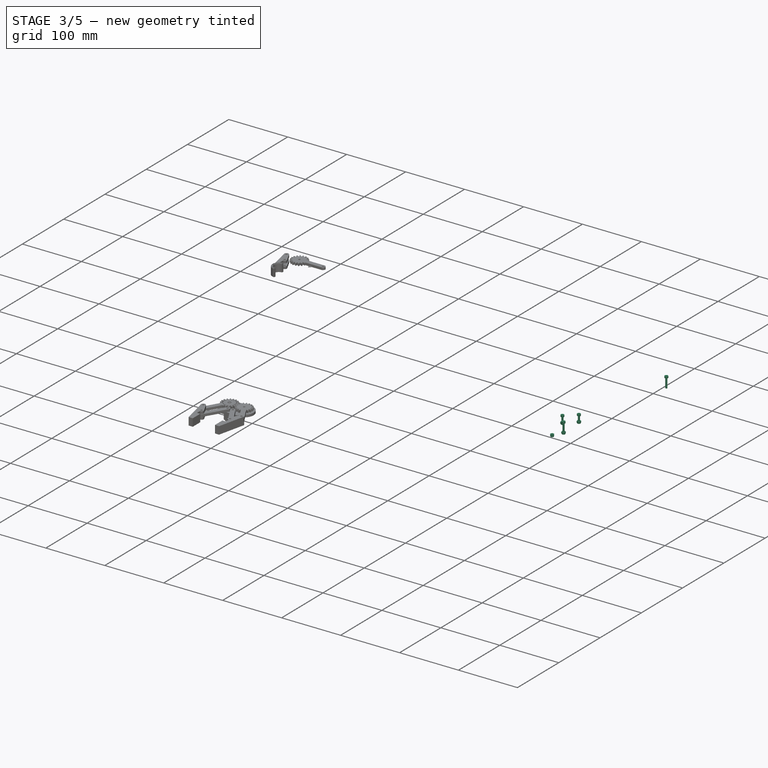
[diagram: stage 3 of 5 — iso view after this stage's code; geometry added in this stage tinted green]
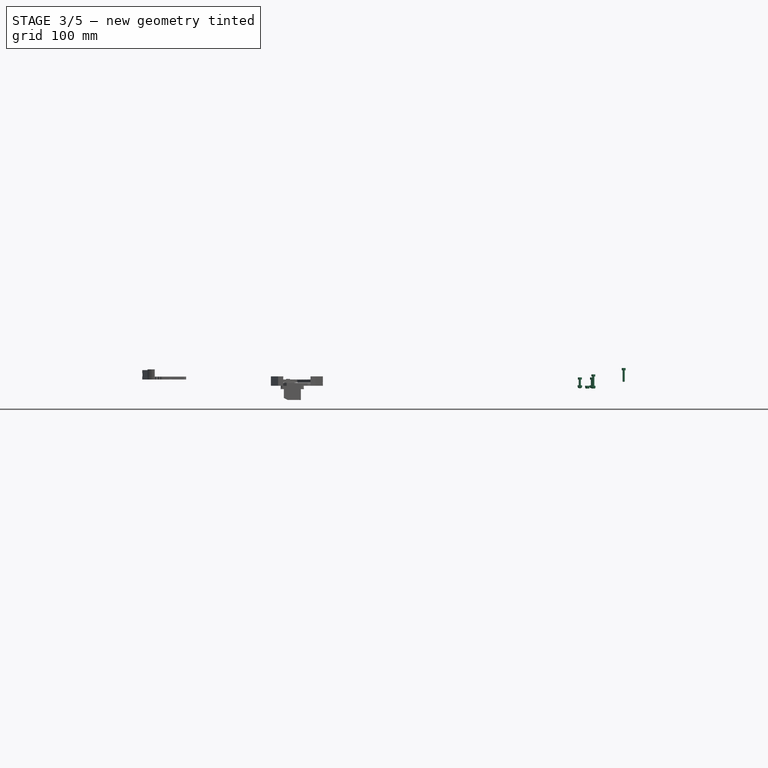
[diagram: stage 3 of 5 — front view after this stage's code; geometry added in this stage tinted green]
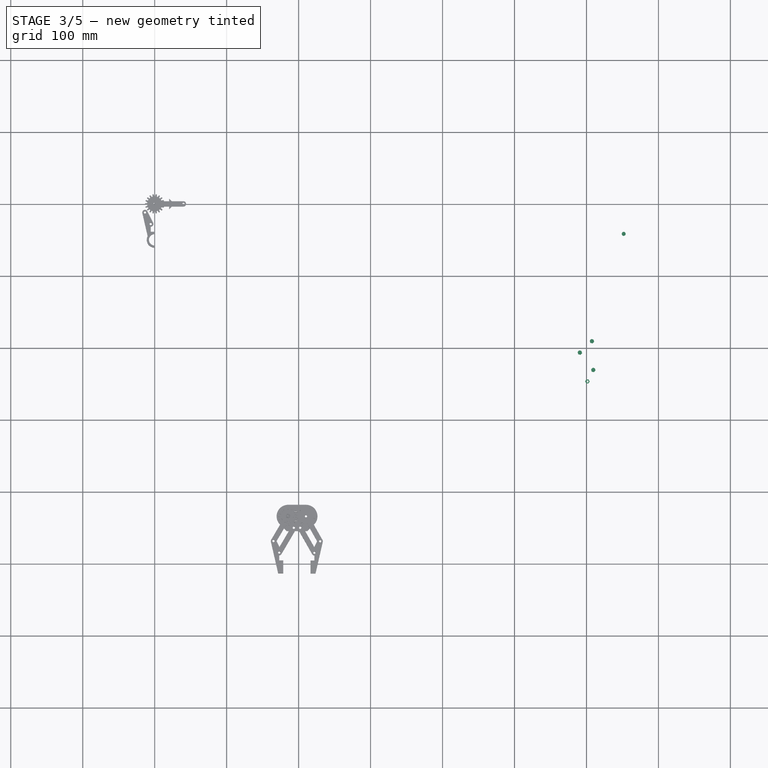
[diagram: stage 3 of 5 — top view after this stage's code; geometry added in this stage tinted green]
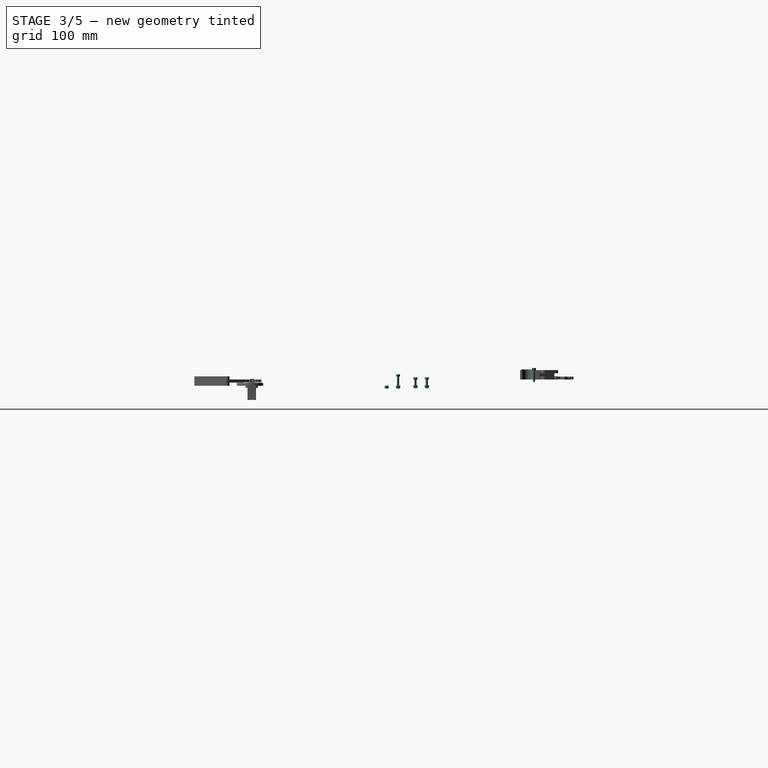
[diagram: stage 3 of 5 — right view after this stage's code; geometry added in this stage tinted green]
FEATURE [Part::FeaturePython] Clone043  label="Clone of Nyloc-nut-M014"  # Draft clone (typed FeaturePython)
  Objects = -> [Compound010]
  Placement = pos=(53.7023,-19.4674,0) rot=(0.369013,0.929424,0;3.14159rad)
  Scale = (1,1,1)
FEATURE [Part::FeaturePython] Clone045  label="Clone of bolt-M3x16-005"  # Draft clone (typed FeaturePython)
  Objects = -> [Chamfer008]
  Placement = pos=(53.7023,-19.4674,12.9) rot=(0,0,1;0rad)
  Scale = (1,1,1)
FEATURE [Part::FeaturePython] Clone047  label="Clone of Clone of Nyloc-nut-M014"  # Draft clone (typed FeaturePython)
  Objects = -> [Clone043]
  Placement = pos=(246.649,-34.4674,-8.5) rot=(0.369013,0.929424,0;3.14159rad)
  Scale = (1,1,1)
FEATURE [Part::FeaturePython] Clone049  label="Clone of Clone of bolt-M3x16-005"  # Draft clone (typed FeaturePython)
  Objects = -> [Clone045]
  Placement = pos=(246.649,-34.4674,4.2) rot=(0,0,1;0rad)
  Scale = (1,1,1)
FEATURE [Part::Part2DObjectPython] Line029  # Draft 2D object (typed FeaturePython)
  ChamferSize = 0
  Closed = false
  End = (143.702,-34.4674,0)
  FilletRadius = 0
  Length = 15.8114
  MakeFace = true
  MapMode = 5
  Points = (2) [(158.702,-29.4674,-8.88178e-16),(143.702,-34.4674,3.55271e-15)]
  Start = (158.702,-29.4674,0)
FEATURE [Part::FeaturePython] Clone058  label="Clone of Clone of Clone of Nyloc-nut-M015"  # Draft clone (typed FeaturePython)
  Objects = -> [Clone047]
  Placement = pos=(143.702,-34.4674,-20) rot=(0.369013,0.929424,0;3.14159rad)
  Scale = (1,1,1)
FEATURE [Part::FeaturePython] Clone059  label="Clone of Clone of Clone of bolt-M3x16-006"  # Draft clone (typed FeaturePython)
  Objects = -> [Clone049]
  Placement = pos=(143.702,-34.4674,38.6) rot=(0,0,1;0rad)
  Scale = (1,1,1)
FEATURE [Part::FeaturePython] Clone068  label="Clone of bolt-M3x16-007"  # Draft clone (typed FeaturePython)
  Objects = -> [Chamfer011]
  Placement = pos=(372.962,-25.8453,45) rot=(0,0,1;0rad)
  Scale = (1,1,1)
FEATURE [Part::FeaturePython] Clone069  label="Clone of Nyloc-nut-M016"  # Draft clone (typed FeaturePython)
  Objects = -> [Compound012]
  Placement = pos=(372.962,-25.8453,-26) rot=(0.369013,0.929424,0;3.14159rad)
  Scale = (1,1,1)
FEATURE [Part::FeaturePython] Clone072  label="Clone of Clone of bolt-M3x16-007"  # Draft clone (typed FeaturePython)
  Objects = -> [Clone068]
  Placement = pos=(446.398,-25.8457,12.9) rot=(0,0,1;0rad)
  Scale = (1,1,1)
FEATURE [Part::FeaturePython] Clone073  label="Clone of Clone of Nyloc-nut-M016"  # Draft clone (typed FeaturePython)
  Objects = -> [Clone069]
  Placement = pos=(446.398,-25.8457,0) rot=(0.369013,0.929424,0;3.14159rad)
  Scale = (1,1,1)
FEATURE [Part::FeaturePython] Clone077  label="Clone of Clone of Clone of bolt-M3x16-008"  # Draft clone (typed FeaturePython)
  Objects = -> [Clone072]
  Placement = pos=(582.736,-25.8457,12.9) rot=(0,0,1;0rad)
  Scale = (1,1,1)
FEATURE [Part::FeaturePython] Clone078  label="Clone of Clone of Clone of Nyloc-nut-M017"  # Draft clone (typed FeaturePython)
  Objects = -> [Clone073]
  Placement = pos=(582.736,-25.8457,0) rot=(0.369013,0.929424,0;3.14159rad)
  Scale = (1,1,1)
FEATURE [App::Annotation] Text054
  LabelText = Exploded diagram
  Position = (-107,385,0)
FEATURE [App::DocumentObjectGroup] Group008  label="Exploded-diagram"
  Group = -> [Clone028,Clone029,Clone030,Clone031,Clone032,Clone033,Clone034,Chamfer008,Chamfer009,Chamfer010,Chamfer011,Chamfer012,Compound008,Chamfer013,Compound009,Compound010,Compound012,Chamfer014,Chamfer015,Line001,Line,Line002,Line003,Line004,Line005,Line006,Line007,Line008,Line009,Line010,Line011,Text032,Circle016,Line020,Line021,Circle017,Text033,Compound024,Compound025,Compound026,Compound027,Line022,+18 more]
FEATURE [Part::Part2DObjectPython] Line033  # Draft 2D object (typed FeaturePython)
  ChamferSize = 0
  Closed = false
  End = (574.736,-41.8457,8.3)
  FilletRadius = 0
  Length = 15.566
  MakeFace = true
  MapMode = 5
  Placement = pos=(362.802,192.057,0) rot=(0,0,1;0rad)
  Points = (2) [(198.388,-226.234,8.3),(211.934,-233.902,8.3)]
  Start = (561.19,-34.1776,8.3)
  Support = -> [Clone075]
FEATURE [Part::FeaturePython] Clone080  label="Clone of Clone of Clone of Clone of bolt-M3x16-006"  # Draft clone (typed FeaturePython)
  Objects = -> [Clone059]
  Placement = pos=(574.736,-41.8457,38.6) rot=(0,0,1;0rad)
  Scale = (1,1,1)
FEATURE [Part::FeaturePython] Clone081  label="Clone of Clone of Clone of Clone of Nyloc-nut-M015"  # Draft clone (typed FeaturePython)
  Objects = -> [Clone058]
  Placement = pos=(574.737,-41.8457,-20) rot=(0.369013,0.929424,0;3.14159rad)
  Scale = (1,1,1)
FEATURE [Part::Part2DObjectPython] Line034  # Draft 2D object (typed FeaturePython)
  ChamferSize = 0
  Closed = false
  End = (574.737,-41.8457,-20.2)
  FilletRadius = 0
  Length = 43.2
  MakeFace = true
  MapMode = 5
  Placement = pos=(362.802,192.057,0) rot=(0,0,1;0rad)
  Points = (2) [(211.934,-233.902,23),(211.934,-233.902,-20.2)]
  Start = (574.736,-41.8457,23)
FEATURE [Part::FeaturePython] Clone082  label="Clone of Clone of Clone of Clone of bolt-M3x16-008"  # Draft clone (typed FeaturePython)
  Objects = -> [Clone077]
  Placement = pos=(659.736,-25.8457,12.9) rot=(0,0,1;0rad)
  Scale = (1,1,1)
FEATURE [Part::FeaturePython] Clone085  label="Clone of Clone of Clone of Clone of Nyloc-nut-M017"  # Draft clone (typed FeaturePython)
  Objects = -> [Clone078]
  Placement = pos=(659.736,-25.8457,0) rot=(0.369013,0.929424,0;3.14159rad)
  Scale = (1,1,1)
FEATURE [Part::FeaturePython] Clone087  label="Clone of Clone of Clone of Clone of Clone of bolt-M3x16-006"  # Draft clone (typed FeaturePython)
  Objects = -> [Clone080]
  Placement = pos=(651.736,-41.8457,12.9) rot=(0,0,1;0rad)
  Scale = (1,1,1)
FEATURE [Part::FeaturePython] Clone088  label="Clone of Clone of Clone of Clone of Clone of Nyloc-nut-M015"  # Draft clone (typed FeaturePython)
  Objects = -> [Clone081]
  Placement = pos=(651.736,-41.8457,0) rot=(0.369013,0.929424,0;3.14159rad)
  Scale = (1,1,1)
FEATURE [Part::FeaturePython] Clone103  label="Clone of Clone of Bolt-M3x12-005"  # WARN: FeaturePython — macro-defined, semantics opaque (R4)
  Placement = pos=(2.80235,-190.066,-0.1) rot=(0,0,1;0rad)
  Scale = (1,1,1)
FEATURE [Part::FeaturePython] Clone111  label="Clone of Clone of Clone of Bolt-M3x12-004"  # WARN: FeaturePython — macro-defined, semantics opaque (R4)
  Placement = pos=(10.8024,-206.066,-0.1) rot=(0,0,1;0rad)
  Scale = (1,1,1)
FEATURE [Part::FeaturePython] Clone112  label="Clone of Clone of Clone of Clone of Clone of Nyloc-nut-M020"  # WARN: FeaturePython — macro-defined, semantics opaque (R4)
  Placement = pos=(10.8024,-206.066,-8) rot=(0.369013,0.929424,0;3.14159rad)
  Scale = (1,1,1)
FEATURE [Part::FeaturePython] Clone116  label="Clone of Clone of Clone of Bolt-M3x12-005"  # Draft clone (typed FeaturePython)
  Objects = -> [Clone103]
  Placement = pos=(186.802,-197.533,-0.1) rot=(0,0,1;0rad)
  Scale = (1,1,1)
FEATURE [Part::FeaturePython] Clone124  label="Clone of Clone of Clone of Clone of Bolt-M3x12-004"  # Draft clone (typed FeaturePython)
  Objects = -> [Clone111]
  Placement = pos=(203.605,-213.533,-0.1) rot=(0,0,1;0rad)
  Scale = (1,1,1)
FEATURE [Part::FeaturePython] Clone125  label="Clone of Clone of Clone of Clone of Clone of Clone of Nyloc-nut-M020"  # Draft clone (typed FeaturePython)
  Objects = -> [Clone112]
  Placement = pos=(203.605,-213.533,-8.34) rot=(0.369013,0.929424,0;3.14159rad)
  Scale = (1,1,1)
FEATURE [Part::FeaturePython] Clone131  label="Clone of Clone of Clone of Clone of Clone of bolt-M3x16-008"  # Draft clone (typed FeaturePython)
  Objects = -> [Clone082]
  Placement = pos=(249.47,-222.443,4.2) rot=(0,0,-1;0.298904rad)
  Scale = (1,1,1)
FEATURE [Part::FeaturePython] Clone132  label="Clone of Clone of Clone of Clone of Clone of Clone of Nyloc-nut-M015"  # Draft clone (typed FeaturePython)
  Objects = -> [Clone088]
  Placement = pos=(237.113,-235.377,-8.7) rot=(0.369013,0.929424,0;3.14159rad)
  Scale = (1,1,1)
FEATURE [Part::FeaturePython] Clone133  label="Clone of Clone of Clone of Clone of Clone of Nyloc-nut-M017"  # Draft clone (typed FeaturePython)
  Objects = -> [Clone085]
  Placement = pos=(249.47,-222.443,-8.7) rot=(0.503288,0.864119,0;3.14159rad)
  Scale = (1,1,1)
FEATURE [Part::FeaturePython] Clone134  label="Clone of Clone of Clone of Clone of Clone of Bolt-M3x12-004"  # Draft clone (typed FeaturePython)
  Objects = -> [Clone124]
  Placement = pos=(194.802,-213.533,-0.1) rot=(0,0,1;0rad)
  Scale = (1,1,1)
FEATURE [Part::FeaturePython] Clone135  label="Clone of Clone of Clone of Clone of Clone of Clone of Clone of Nyloc-nut-M020"  # Draft clone (typed FeaturePython)
  Objects = -> [Clone125]
  Placement = pos=(194.802,-213.533,-8) rot=(0.369013,0.929424,0;3.14159rad)
  Scale = (1,1,1)
FEATURE [Part::FeaturePython] Clone137  label="Clone of Clone of Clone of Clone of Bolt-M3x12-005"  # Draft clone (typed FeaturePython)
  Objects = -> [Clone116]
  Placement = pos=(387.802,-190.533,-0.1) rot=(0,0,1;0rad)
  Scale = (1,1,1)
FEATURE [Part::FeaturePython] Clone152  label="Clone of Clone of Clone of Clone of Clone of Clone of bolt-M3x16-008"  # Draft clone (typed FeaturePython)
  Objects = -> [Clone131]
  Placement = pos=(414.511,-230.64,4.2) rot=(0,0,-1;0.0133rad)
  Scale = (1,1,1)
FEATURE [Part::FeaturePython] Clone153  label="Clone of Clone of Clone of Clone of Clone of Clone of Clone of Nyloc-nut-M015"  # Draft clone (typed FeaturePython)
  Objects = -> [Clone132]
  Placement = pos=(406.299,-246.532,-8.7) rot=(0.232984,0.972481,0;3.14159rad)
  Scale = (1,1,1)
FEATURE [Part::FeaturePython] Clone154  label="Clone of Clone of Clone of Clone of Clone of Clone of Nyloc-nut-M017"  # Draft clone (typed FeaturePython)
  Objects = -> [Clone133]
  Placement = pos=(414.511,-230.64,-8.7) rot=(0.375186,0.92695,0;3.14159rad)
  Scale = (1,1,1)
FEATURE [Part::FeaturePython] Clone155  label="Clone of Clone of Clone of Clone of Clone of Clone of Bolt-M3x12-004"  # Draft clone (typed FeaturePython)
  Objects = -> [Clone134]
  Placement = pos=(395.802,-206.533,-0.1) rot=(0,0,1;0rad)
  Scale = (1,1,1)
FEATURE [Part::FeaturePython] Clone156  label="Clone of Clone of Clone of Clone of Clone of Clone of Clone of Clone of Nyloc-nut-M020"  # Draft clone (typed FeaturePython)
  Objects = -> [Clone135]
  Placement = pos=(395.802,-206.533,-8) rot=(0.369013,0.929424,0;3.14159rad)
  Scale = (1,1,1)
FEATURE [Part::FeaturePython] Clone158  label="Clone of Clone of Clone of Clone of Clone of Bolt-M3x12-006"  # Draft clone (typed FeaturePython)
  Objects = -> [Clone137]
  Placement = pos=(582.802,-190.533,-0.1) rot=(0,0,1;0rad)
  Scale = (1,1,1)
FEATURE [Part::FeaturePython] Clone173  label="Clone of Clone of Clone of Clone of Clone of Clone of Clone of bolt-M3x16-008"  # Draft clone (typed FeaturePython)
  Objects = -> [Clone152]
  Placement = pos=(609.511,-230.64,4.2) rot=(0,0,-1;0.0133rad)
  Scale = (1,1,1)
FEATURE [Part::FeaturePython] Clone174  label="Clone of Clone of Clone of Clone of Clone of Clone of Clone of Clone of Nyloc-nut-M015"  # Draft clone (typed FeaturePython)
  Objects = -> [Clone153]
  Placement = pos=(601.299,-246.532,-8.7) rot=(0.232984,0.972481,0;3.14159rad)
  Scale = (1,1,1)
FEATURE [Part::FeaturePython] Clone175  label="Clone of Clone of Clone of Clone of Clone of Clone of Clone of Nyloc-nut-M017"  # Draft clone (typed FeaturePython)
  Objects = -> [Clone154]
  Placement = pos=(609.511,-230.64,-8.7) rot=(0.375186,0.92695,0;3.14159rad)
  Scale = (1,1,1)
FEATURE [Part::FeaturePython] Clone176  label="Clone of Clone of Clone of Clone of Clone of Clone of Clone of Bolt-M3x12-004"  # Draft clone (typed FeaturePython)
  Objects = -> [Clone155]
  Placement = pos=(590.802,-206.533,-0.1) rot=(0,0,1;0rad)
  Scale = (1,1,1)
FEATURE [Part::FeaturePython] Clone177  label="Clone of Clone of Clone of Clone of Clone of Clone of Clone of Clone of Clone of Nyloc-nut-M020"  # Draft clone (typed FeaturePython)
  Objects = -> [Clone156]
  Placement = pos=(590.802,-206.533,-8) rot=(0.369013,0.929424,0;3.14159rad)
  Scale = (1,1,1)
FEATURE [Part::FeaturePython] Clone178  label="Clone of Clone of Clone of Clone of Clone of Clone of Bolt-M3x12-006"  # Draft clone (typed FeaturePython)
  Objects = -> [Clone158]
  Placement = pos=(607.612,-190.685,-0.1) rot=(0,0,1;0rad)
  Scale = (1,1,1)
FEATURE [Part::FeaturePython] Clone179  label="Clone of Clone of Clone of Clone of Clone of Clone of Clone of Clone of Clone of Clone of Nyloc-nut-M019"  # Draft clone (typed FeaturePython)
  Objects = -> [Clone168]
  Placement = pos=(607.612,-190.685,-8) rot=(0.369013,0.929424,0;3.14159rad)
  Scale = (1,1,1)
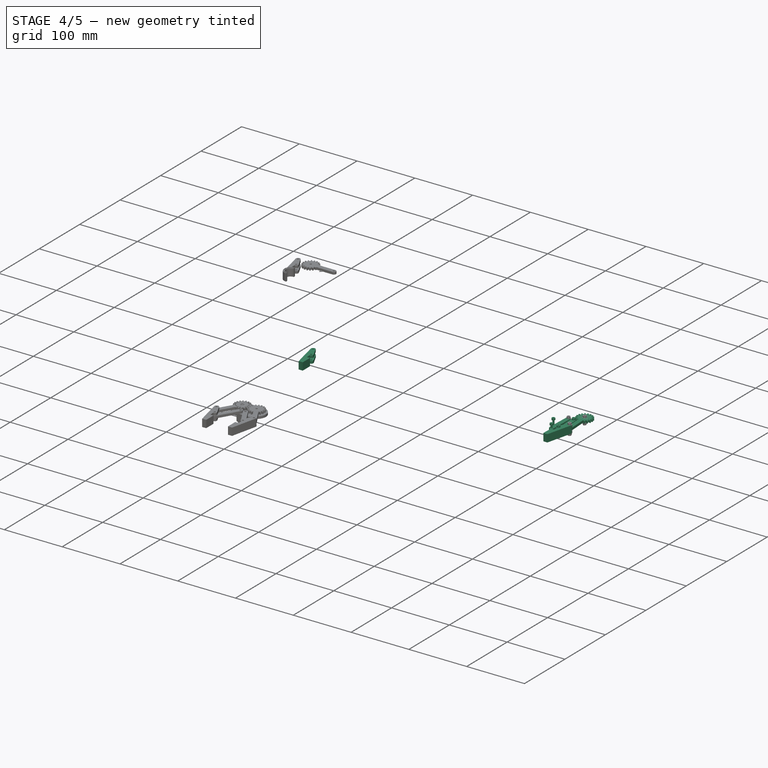
[diagram: stage 4 of 5 — iso view after this stage's code; geometry added in this stage tinted green]
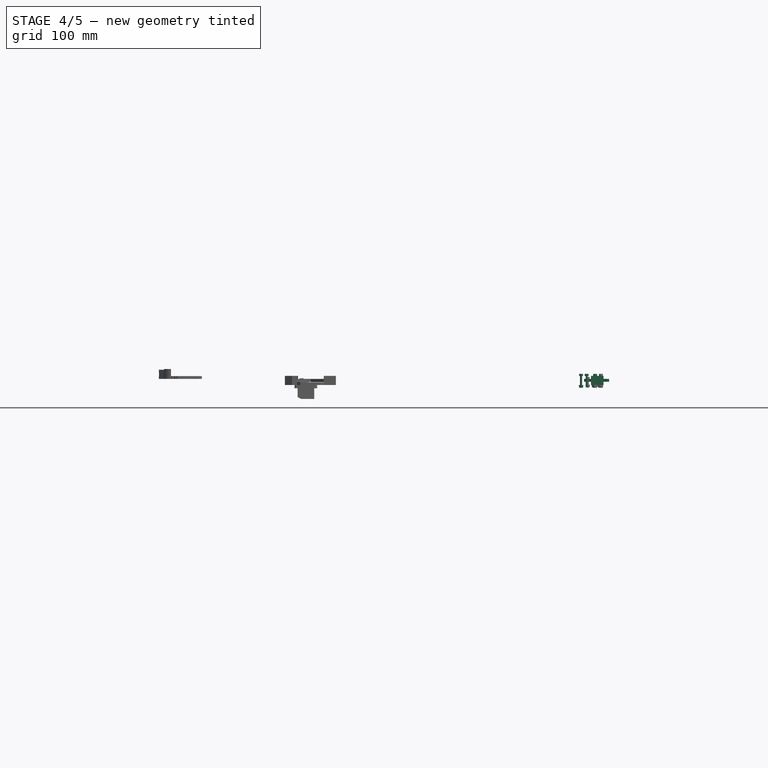
[diagram: stage 4 of 5 — front view after this stage's code; geometry added in this stage tinted green]
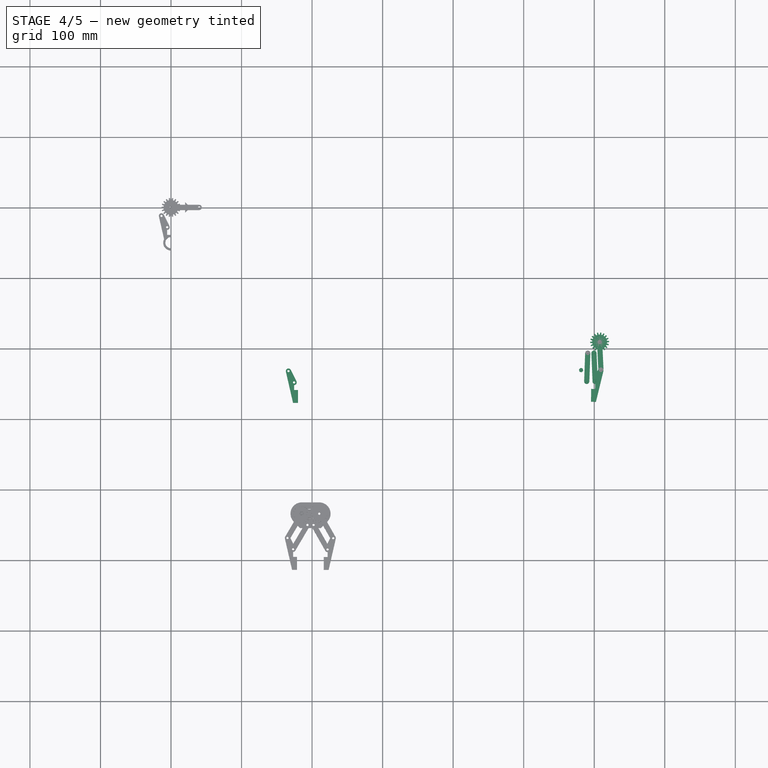
[diagram: stage 4 of 5 — top view after this stage's code; geometry added in this stage tinted green]
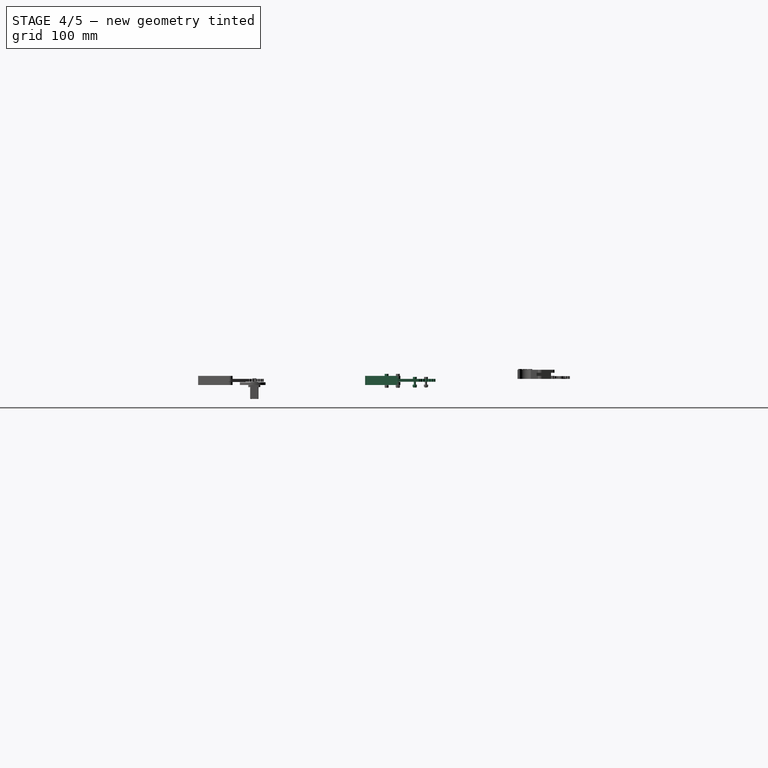
[diagram: stage 4 of 5 — right view after this stage's code; geometry added in this stage tinted green]
FEATURE [App::Annotation] Text047
  LabelText = STEP 2
  Position = (191.159,49,0)
FEATURE [Part::Part2DObjectPython] Circle028  # Draft 2D object (typed FeaturePython)
  FirstAngle = 0
  LastAngle = 0
  MakeFace = false
  MapMode = 5
  Placement = pos=(-42.326,-14.3053,41.6) rot=(0,0,1;0rad)
  Radius = 5
FEATURE [App::Annotation] Text048
  LabelText = 7
  Position = (-44.5149,-15.9095,41.6)
FEATURE [Part::Part2DObjectPython] Rectangle006  # Draft 2D object (typed FeaturePython)
  ChamferSize = 0
  FilletRadius = 0
  Height = -169
  Length = 162
  MakeFace = false
  MapMode = 5
  Placement = pos=(-68,65,0) rot=(0,0,1;0rad)
FEATURE [App::DocumentObjectGroup] Group010  label="Step-1"
  Group = -> [Clone042,Clone043,Clone044,Clone045,Line027,Clone046,Clone048,Text040,Clone050,Circle024,Text041,Circle025,Text042,Circle026,Text043,Text045,Text046,Clone2D,Clone057,Circle028,Clone056,Text048,Rectangle006]
FEATURE [Part::Part2DObjectPython] Rectangle007  # Draft 2D object (typed FeaturePython)
  ChamferSize = 0
  FilletRadius = 0
  Height = -169
  Length = 173
  MakeFace = false
  MapMode = 5
  Placement = pos=(119,65,0) rot=(0,0,1;0rad)
FEATURE [App::Annotation] Text049
  LabelText = Do not tighten the nut too much
  Position = (152,-89,0)
FEATURE [App::Annotation] Text050
  LabelText = Make sure the two parts can rotate smoothly
  Position = (152,-96,0)
FEATURE [App::DocumentObjectGroup] Group011  label="Step-2"
  Group = -> [Clone051,Clone052,Clone053,Clone054,Clone055,Line029,Clone058,Clone059,Clone060,Clone061,Clone062,Clone063,Clone064,Clone065,Text047,Circle027,Text044,Line028,Clone049,Clone047,Rectangle007,Text049,Text050]
FEATURE [Part::FeaturePython] Clone066  label="Clone of right-finger001"  # Draft clone (typed FeaturePython)
  Objects = -> [Clone033]
  Placement = pos=(372.302,-80.9663,13) rot=(0,1,0;3.14159rad)
  Scale = (1,1,1)
FEATURE [Part::FeaturePython] Clone067  label="Clone of right-gear003"  # Draft clone (typed FeaturePython)
  Objects = -> [Clone032]
  Placement = pos=(353.203,8.9337,4.7) rot=(0,0,-1;1.05416rad)
  Scale = (1,1,1)
FEATURE [Part::Part2DObjectPython] Line031  # Draft 2D object (typed FeaturePython)
  ChamferSize = 0
  Closed = false
  End = (372.962,-25.8461,-28)
  FilletRadius = 0
  Length = 57
  MakeFace = true
  MapMode = 5
  Placement = pos=(333.802,191.934,0) rot=(0,0,1;0rad)
  Points = (2) [(39.1594,-217.779,29),(39.1594,-217.78,-28)]
  Start = (372.962,-25.8453,29)
FEATURE [Part::FeaturePython] Clone070  label="Clone of Clone of right-finger001"  # Draft clone (typed FeaturePython)
  Objects = -> [Clone066]
  Placement = pos=(432.898,-70.7457,13) rot=(0,1,0;3.14159rad)
  Scale = (1,1,1)
FEATURE [Part::FeaturePython] Clone071  label="Clone of Clone of right-gear003"  # Draft clone (typed FeaturePython)
  Objects = -> [Clone067]
  Placement = pos=(426.64,8.9337,4.7) rot=(0,0,-1;1.05416rad)
  Scale = (1,1,1)
FEATURE [App::Annotation] Text053
  LabelText = STEP 3
  Position = (385.802,48.9337,0)
FEATURE [Part::Part2DObjectPython] Rectangle008  # Draft 2D object (typed FeaturePython)
  ChamferSize = 0
  FilletRadius = 0
  Height = -169
  Length = 163
  MakeFace = false
  MapMode = 5
  Placement = pos=(317.802,64.9337,0) rot=(0,0,1;0rad)
FEATURE [Part::Part2DObjectPython] Line032  # Draft 2D object (typed FeaturePython)
  ChamferSize = 0
  Closed = false
  End = (385.802,-36.0663,8.7)
  FilletRadius = 0
  Length = 16.4116
  MakeFace = true
  MapMode = 5
  Placement = pos=(384.802,184.934,0) rot=(0,0,1;0rad)
  Points = (2) [(-11.8406,-210.779,8.7),(1,-221,8.7)]
  Start = (372.962,-25.8457,8.7)
  Support = -> [Clone067]
FEATURE [App::DocumentObjectGroup] Group012  label="Step-3"
  Group = -> [Clone066,Clone067,Clone068,Clone069,Line031,Clone070,Clone071,Clone072,Clone073,Circle029,Text051,Circle030,Text052,Clone074,Text053,Rectangle008,Line032]
FEATURE [Part::FeaturePython] Clone075  label="Clone of Clone of Clone of right-finger001"  # Draft clone (typed FeaturePython)
  Objects = -> [Clone070]
  Placement = pos=(569.236,-70.7457,13) rot=(0,1,0;3.14159rad)
  Scale = (1,1,1)
FEATURE [Part::FeaturePython] Clone076  label="Clone of Clone of Clone of right-gear003"  # Draft clone (typed FeaturePython)
  Objects = -> [Clone071]
  Placement = pos=(562.978,8.9337,4.7) rot=(0,0,-1;1.05416rad)
  Scale = (1,1,1)
FEATURE [Part::FeaturePython] Clone079  label="Clone of right-link001"  # Draft clone (typed FeaturePython)
  Objects = -> [Clone034]
  Placement = pos=(527.681,-12.3332,4.3) rot=(0,0,-1;0.577712rad)
  Scale = (1,1,1)
FEATURE [Part::FeaturePython] Clone083  label="Clone of Clone of Clone of Clone of right-gear003"  # Draft clone (typed FeaturePython)
  Objects = -> [Clone076]
  Placement = pos=(639.978,8.9337,4.7) rot=(0,0,-1;1.05416rad)
  Scale = (1,1,1)
FEATURE [Part::FeaturePython] Clone084  label="Clone of Clone of Clone of Clone of right-finger001"  # Draft clone (typed FeaturePython)
  Objects = -> [Clone075]
  Placement = pos=(646.236,-70.7457,13) rot=(0,1,0;3.14159rad)
  Scale = (1,1,1)
FEATURE [Part::FeaturePython] Clone086  label="Clone of Clone of right-link001"  # Draft clone (typed FeaturePython)
  Objects = -> [Clone079]
  Placement = pos=(618.228,-20.0014,4.7) rot=(0,0,-1;0.577712rad)
  Scale = (1,1,1)
FEATURE [Part::FeaturePython] Clone106  label="Clone of Clone of Clone of Clone of left-finger003"  # WARN: FeaturePython — macro-defined, semantics opaque (R4)
  Placement = pos=(-3.99534,-269.434,-8.7) rot=(0,0,1;0rad)
  Scale = (1,1,1)
FEATURE [Part::FeaturePython] Clone107  label="Clone of Clone of Clone of Clone of Nyloc-nut-M018"  # WARN: FeaturePython — macro-defined, semantics opaque (R4)
  Placement = pos=(-17.4953,-224.534,-8.7) rot=(0.369013,0.929424,0;3.14159rad)
  Scale = (1,1,1)
FEATURE [Part::FeaturePython] Clone108  label="Clone of Clone of Clone of Clone of bolt-M3x16-010"  # WARN: FeaturePython — macro-defined, semantics opaque (R4)
  Placement = pos=(-9.49534,-240.534,4.2) rot=(0,0,1;0rad)
  Scale = (1,1,1)
FEATURE [Part::FeaturePython] Clone109  label="Clone of Clone of Clone of left-link002"  # WARN: FeaturePython — macro-defined, semantics opaque (R4)
  Placement = pos=(-9.49534,-240.534,-4) rot=(0,0,1;1.03858rad)
  Scale = (1,1,1)
FEATURE [Part::FeaturePython] Clone110  label="Clone of Clone of Clone of Clone of bolt-M3x16-009"  # WARN: FeaturePython — macro-defined, semantics opaque (R4)
  Placement = pos=(-17.4953,-224.534,4.2) rot=(0,0,1;0rad)
  Scale = (1,1,1)
FEATURE [Part::FeaturePython] Clone119  label="Clone of Clone of Clone of Clone of Clone of left-finger003"  # Draft clone (typed FeaturePython)
  Objects = -> [Clone106]
  Placement = pos=(180.005,-276.901,-8.7) rot=(0,0,1;0rad)
  Scale = (1,1,1)
FEATURE [Part::FeaturePython] Clone120  label="Clone of Clone of Clone of Clone of Clone of Nyloc-nut-M018"  # Draft clone (typed FeaturePython)
  Objects = -> [Clone107]
  Placement = pos=(166.505,-232.001,-8.7) rot=(0.369013,0.929424,0;3.14159rad)
  Scale = (1,1,1)
FEATURE [Part::FeaturePython] Clone121  label="Clone of Clone of Clone of Clone of Clone of bolt-M3x16-010"  # Draft clone (typed FeaturePython)
  Objects = -> [Clone108]
  Placement = pos=(174.505,-248.001,4.2) rot=(0,0,1;0rad)
  Scale = (1,1,1)
FEATURE [Part::FeaturePython] Clone122  label="Clone of Clone of Clone of Clone of left-link002"  # Draft clone (typed FeaturePython)
  Objects = -> [Clone109]
  Placement = pos=(174.505,-248.001,-4) rot=(0,0,1;1.03858rad)
  Scale = (1,1,1)
FEATURE [Part::FeaturePython] Clone123  label="Clone of Clone of Clone of Clone of Clone of bolt-M3x16-009"  # Draft clone (typed FeaturePython)
  Objects = -> [Clone110]
  Placement = pos=(166.505,-232.001,4.2) rot=(0,0,1;0rad)
  Scale = (1,1,1)
FEATURE [Part::FeaturePython] Clone127  label="Clone of Clone of Clone of Clone of Clone of right-finger001"  # Draft clone (typed FeaturePython)
  Objects = -> [Clone084]
  Placement = pos=(223.347,-261.376,4.3) rot=(0.148897,0.988853,0;3.14159rad)
  Scale = (1,1,1)
FEATURE [Part::FeaturePython] Clone128  label="Clone of Clone of Clone of right-link001"  # Draft clone (typed FeaturePython)
  Objects = -> [Clone086]
  Placement = pos=(203.605,-213.533,-4) rot=(0,0,-1;0.577712rad)
  Scale = (1,1,1)
FEATURE [Part::FeaturePython] Clone129  label="Clone of Clone of Clone of Clone of Clone of right-gear003"  # Draft clone (typed FeaturePython)
  Objects = -> [Clone083]
  Placement = pos=(240.83,-183.387,-4) rot=(0,0,-1;1.35306rad)
  Scale = (1,1,1)
FEATURE [Part::FeaturePython] Clone130  label="Clone of Clone of Clone of Clone of Clone of Clone of bolt-M3x16-006"  # Draft clone (typed FeaturePython)
  Objects = -> [Clone087]
  Placement = pos=(237.113,-235.377,4.2) rot=(0,0,1;0rad)
  Scale = (1,1,1)
FEATURE [Part::FeaturePython] Clone141  label="Clone of Clone of Clone of Clone of Clone of Clone of Nyloc-nut-M018"  # Draft clone (typed FeaturePython)
  Objects = -> [Clone120]
  Placement = pos=(386.379,-230.531,-8.7) rot=(0.369013,0.929424,0;3.14159rad)
  Scale = (1,1,1)
FEATURE [Part::FeaturePython] Clone142  label="Clone of Clone of Clone of Clone of Clone of Clone of bolt-M3x16-010"  # Draft clone (typed FeaturePython)
  Objects = -> [Clone121]
  Placement = pos=(394.379,-246.531,4.2) rot=(0,0,1;0rad)
  Scale = (1,1,1)
FEATURE [Part::FeaturePython] Clone143  label="Clone of Clone of Clone of Clone of Clone of left-link002"  # Draft clone (typed FeaturePython)
  Objects = -> [Clone122]
  Placement = pos=(394.379,-246.508,-4) rot=(0,0,1;1.53522rad)
  Scale = (1,1,1)
FEATURE [Part::FeaturePython] Clone144  label="Clone of Clone of Clone of Clone of Clone of Clone of bolt-M3x16-009"  # Draft clone (typed FeaturePython)
  Objects = -> [Clone123]
  Placement = pos=(386.379,-230.531,4.2) rot=(0,0,1;0rad)
  Scale = (1,1,1)
FEATURE [Part::FeaturePython] Clone145  label="Clone of Clone of Clone of Clone of Clone of Bolt-M3x12-005"  # Draft clone (typed FeaturePython)
  Objects = -> [Clone124]
  Placement = pos=(404.605,-206.533,-0.1) rot=(0,0,1;0rad)
  Scale = (1,1,1)
FEATURE [Part::FeaturePython] Clone146  label="Clone of Clone of Clone of Clone of Clone of Clone of Clone of Nyloc-nut-M021"  # Draft clone (typed FeaturePython)
  Objects = -> [Clone125]
  Placement = pos=(404.605,-206.533,-8.34) rot=(0.369013,0.929424,0;3.14159rad)
  Scale = (1,1,1)
FEATURE [Part::FeaturePython] Clone148  label="Clone of Clone of Clone of Clone of Clone of Clone of right-finger001"  # Draft clone (typed FeaturePython)
  Objects = -> [Clone127]
  Placement = pos=(400.415,-275.356,4.3) rot=(0.00665,0.999978,0;3.14159rad)
  Scale = (1,1,1)
FEATURE [Part::FeaturePython] Clone149  label="Clone of Clone of Clone of Clone of right-link001"  # Draft clone (typed FeaturePython)
  Objects = -> [Clone128]
  Placement = pos=(404.605,-206.533,-4) rot=(0,0,-1;1.52846rad)
  Scale = (1,1,1)
FEATURE [Part::FeaturePython] Clone150  label="Clone of Clone of Clone of Clone of Clone of Clone of right-gear003"  # Draft clone (typed FeaturePython)
  Objects = -> [Clone129]
  Placement = pos=(430.692,-194.059,-4) rot=(0,0,-1;1.98725rad)
  Scale = (1,1,1)
FEATURE [Part::FeaturePython] Clone151  label="Clone of Clone of Clone of Clone of Clone of Clone of Clone of bolt-M3x16-006"  # Draft clone (typed FeaturePython)
  Objects = -> [Clone130]
  Placement = pos=(406.299,-246.532,4.2) rot=(0,0,1;0.285605rad)
  Scale = (1,1,1)
FEATURE [Part::FeaturePython] Clone162  label="Clone of Clone of Clone of Clone of Clone of Clone of Clone of Nyloc-nut-M018"  # Draft clone (typed FeaturePython)
  Objects = -> [Clone141]
  Placement = pos=(581.379,-230.531,-8.7) rot=(0.369013,0.929424,0;3.14159rad)
  Scale = (1,1,1)
FEATURE [Part::FeaturePython] Clone163  label="Clone of Clone of Clone of Clone of Clone of Clone of Clone of bolt-M3x16-010"  # Draft clone (typed FeaturePython)
  Objects = -> [Clone142]
  Placement = pos=(589.379,-246.531,4.2) rot=(0,0,1;0rad)
  Scale = (1,1,1)
FEATURE [Part::FeaturePython] Clone164  label="Clone of Clone of Clone of Clone of Clone of Clone of left-link002"  # Draft clone (typed FeaturePython)
  Objects = -> [Clone143]
  Placement = pos=(589.379,-246.508,-4) rot=(0,0,1;1.53522rad)
  Scale = (1,1,1)
FEATURE [Part::FeaturePython] Clone165  label="Clone of Clone of Clone of Clone of Clone of Clone of Clone of bolt-M3x16-009"  # Draft clone (typed FeaturePython)
  Objects = -> [Clone144]
  Placement = pos=(581.379,-230.531,4.2) rot=(0,0,1;0rad)
  Scale = (1,1,1)
FEATURE [Part::FeaturePython] Clone166  label="Clone of Clone of Clone of Clone of Clone of Clone of Bolt-M3x12-005"  # Draft clone (typed FeaturePython)
  Objects = -> [Clone145]
  Placement = pos=(599.605,-206.533,-0.1) rot=(0,0,1;0rad)
  Scale = (1,1,1)
FEATURE [Part::FeaturePython] Clone167  label="Clone of Clone of Clone of Clone of Clone of Clone of Clone of Clone of Nyloc-nut-M021"  # Draft clone (typed FeaturePython)
  Objects = -> [Clone146]
  Placement = pos=(599.605,-206.533,-8.34) rot=(0.369013,0.929424,0;3.14159rad)
  Scale = (1,1,1)
FEATURE [Part::FeaturePython] Clone169  label="Clone of Clone of Clone of Clone of Clone of Clone of Clone of right-finger001"  # Draft clone (typed FeaturePython)
  Objects = -> [Clone148]
  Placement = pos=(595.415,-275.356,4.3) rot=(0.00665,0.999978,0;3.14159rad)
  Scale = (1,1,1)
FEATURE [Part::FeaturePython] Clone170  label="Clone of Clone of Clone of Clone of Clone of right-link001"  # Draft clone (typed FeaturePython)
  Objects = -> [Clone149]
  Placement = pos=(599.605,-206.533,-4) rot=(0,0,-1;1.52846rad)
  Scale = (1,1,1)
FEATURE [Part::FeaturePython] Clone171  label="Clone of Clone of Clone of Clone of Clone of Clone of Clone of right-gear003"  # Draft clone (typed FeaturePython)
  Objects = -> [Clone150]
  Placement = pos=(607.612,-190.685,-4) rot=(0,0,-1;1.52329rad)
  Scale = (1,1,1)
FEATURE [Part::FeaturePython] Clone172  label="Clone of Clone of Clone of Clone of Clone of Clone of Clone of Clone of bolt-M3x16-006"  # Draft clone (typed FeaturePython)
  Objects = -> [Clone151]
  Placement = pos=(601.299,-246.532,4.2) rot=(0,0,1;0.285605rad)
  Scale = (1,1,1)
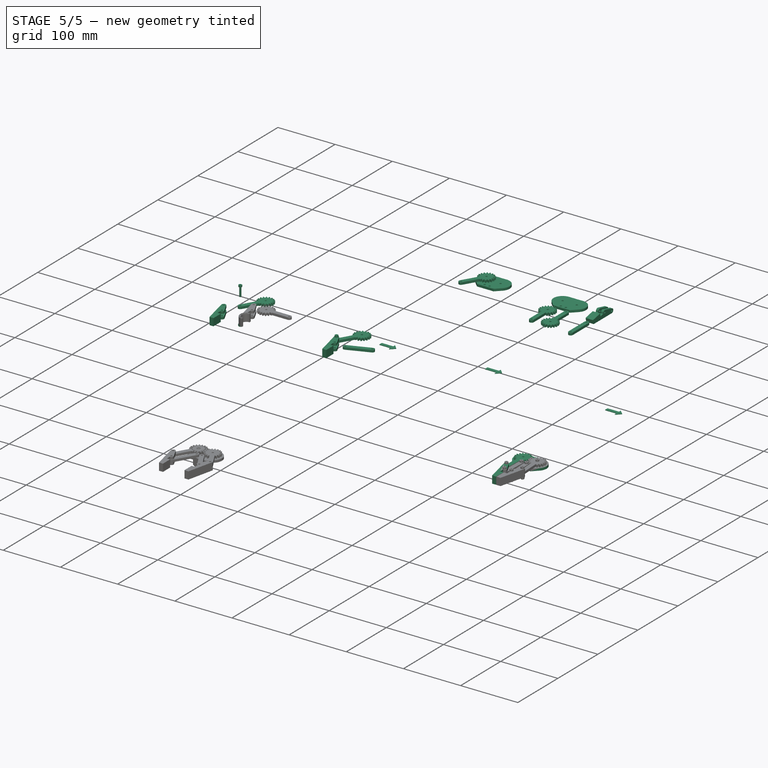
[diagram: stage 5 of 5 — iso view after this stage's code; geometry added in this stage tinted green]
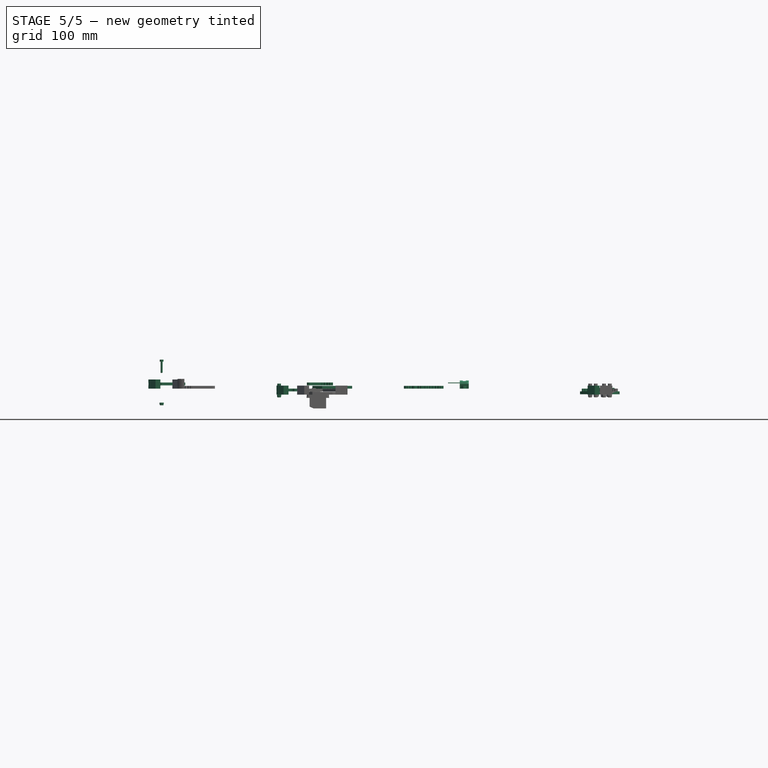
[diagram: stage 5 of 5 — front view after this stage's code; geometry added in this stage tinted green]
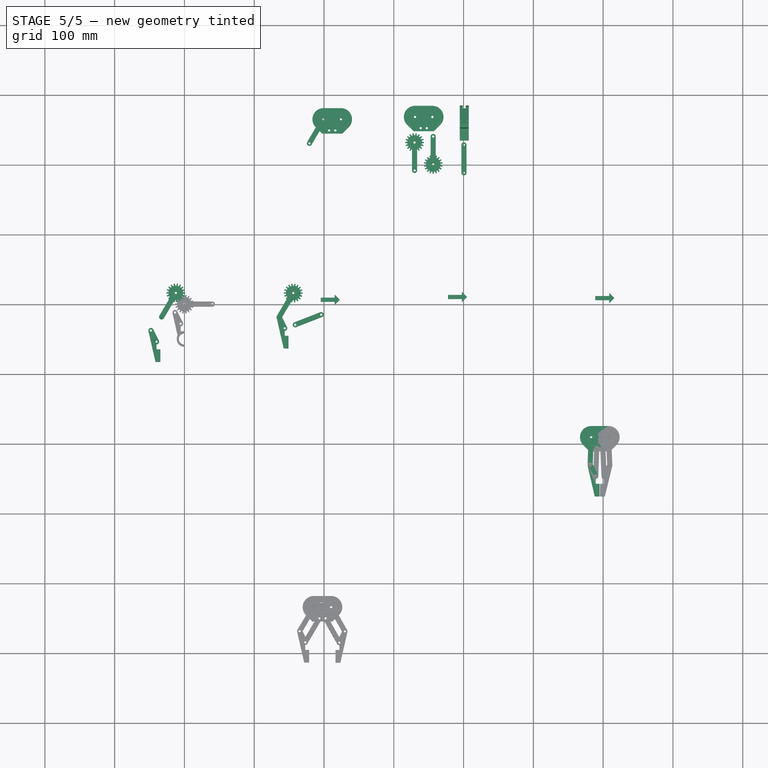
[diagram: stage 5 of 5 — top view after this stage's code; geometry added in this stage tinted green]
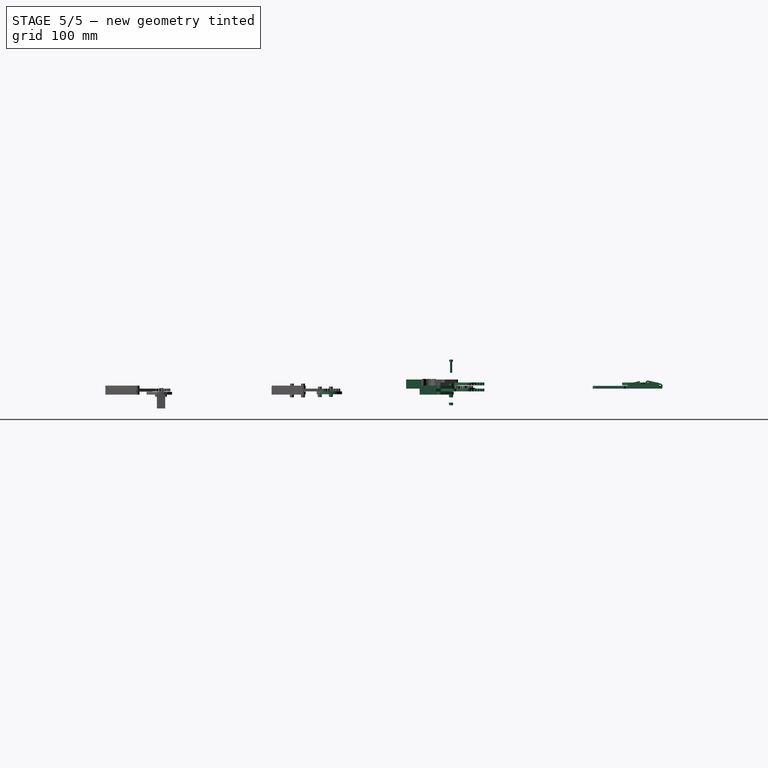
[diagram: stage 5 of 5 — right view after this stage's code; geometry added in this stage tinted green]
FEATURE [Part::FeaturePython] Clone004  label="finger-1"  # Draft clone (typed FeaturePython)
  Objects = -> [Cut]
  Placement = pos=(387.464,233.6,6.82291) rot=(0.111764,-0.98743,-0.111764;1.58345rad)
  Scale = (1,1,1)
FEATURE [Part::FeaturePython] Clone008  label="link2-1"  # Draft clone (typed FeaturePython)
  Objects = -> [Cut001]
  Placement = pos=(380.464,227.255,0) rot=(0,0,-1;1.5708rad)
  Scale = (1,1,1)
FEATURE [Part::FeaturePython] Clone012  label="left-gear-link"  # Draft clone (typed FeaturePython)
  Objects = -> [Cut002]
  Placement = pos=(199.401,264.934,4.7) rot=(0,0,1;4.18018rad)
  Scale = (1,1,1)
FEATURE [Part::FeaturePython] Clone018  label="right-gear002"  # Draft clone (typed FeaturePython)
  Objects = -> [Cut003]
  Placement = pos=(329.782,231.658,0) rot=(0,0,-1;1.5708rad)
  Scale = (1,1,1)
FEATURE [Part::FeaturePython] Clone  label="claw-base"  # Draft clone (typed FeaturePython)
  Objects = -> [Cut004]
  Placement = pos=(211.802,248.934,0) rot=(0,0,1;0rad)
  Scale = (1,1,1)
FEATURE [Part::FeaturePython] Clone024  label="base001"  # Draft clone (typed FeaturePython)
  Objects = -> [Cut004]
  Placement = pos=(342.865,252.255,0) rot=(0,0,1;0rad)
  Scale = (1,1,1)
FEATURE [Part::FeaturePython] Clone025  label="finger-003"  # Draft clone (typed FeaturePython)
  Objects = -> [Clone004]
  Placement = pos=(407.464,234.255,6.82291) rot=(0.111764,-0.98743,-0.111764;1.58345rad)
  Scale = (1,1,1)
FEATURE [Part::FeaturePython] Clone026  label="link-2"  # Draft clone (typed FeaturePython)
  Objects = -> [Clone008]
  Placement = pos=(400.464,228.255,0) rot=(0,0,-1;1.5708rad)
  Scale = (1,1,1)
FEATURE [Part::FeaturePython] Clone027  label="left-gear001"  # Draft clone (typed FeaturePython)
  Objects = -> [Cut002]
  Placement = pos=(356.464,200.255,0) rot=(0,0,1;1.5708rad)
  Scale = (1,1,1)
FEATURE [Part::Feature] Chamfer  label="bolt-M3x16-1"
  Placement = pos=(179.103,230.466,13) rot=(0,0,1;0rad)
  shape: bbox 5.5 x 5.5 x 19 mm, 16 faces (baked)
FEATURE [Part::Feature] Chamfer001  label="bolt-M3x16-002"
  Placement = pos=(187.103,214.466,13) rot=(0,0,1;0rad)
  shape: bbox 5.5 x 5.5 x 19 mm, 16 faces (baked)
FEATURE [Part::Feature] Chamfer002  label="bolt-M3x16-003"
  Placement = pos=(243.962,230.154,13) rot=(0,0,1;0rad)
  shape: bbox 5.5 x 5.5 x 19 mm, 16 faces (baked)
FEATURE [Part::Feature] Chamfer003  label="bolt-M3x16-004"
  Placement = pos=(235.962,214.154,13) rot=(0,0,1;0rad)
  shape: bbox 5.5 x 5.5 x 19 mm, 16 faces (baked)
FEATURE [Part::Feature] Compound  label="Nyloc-nut-M004"
  Placement = pos=(243.962,230.154,0) rot=(0.369013,0.929424,0;3.14159rad)
  shape: bbox 6.35 x 6.35 x 3.86 mm, 36 faces, 2 solids (baked)
FEATURE [Part::Feature] Compound001  label="Nyloc-nut-M005"
  Placement = pos=(235.962,214.154,0) rot=(0.369013,0.929424,0;3.14159rad)
  shape: bbox 6.35 x 6.35 x 3.86 mm, 36 faces, 2 solids (baked)
FEATURE [Part::Feature] Compound002  label="Nyloc-nut-M006"
  Placement = pos=(179.103,230.466,0) rot=(0.369013,0.929424,0;3.14159rad)
  shape: bbox 6.35 x 6.35 x 3.86 mm, 36 faces, 2 solids (baked)
FEATURE [Part::Feature] Compound003  label="Nyloc-nut-M007"
  Placement = pos=(187.103,214.466,0) rot=(0.369013,0.929424,0;3.14159rad)
  shape: bbox 6.35 x 6.35 x 3.86 mm, 36 faces, 2 solids (baked)
FEATURE [Part::Feature] Chamfer004  label="Bolt-M3x12-1"
  Placement = pos=(199.401,264.934,8.6) rot=(0,0,1;0rad)
  shape: bbox 5.5 x 5.5 x 15 mm, 16 faces (baked)
FEATURE [Part::Feature] Chamfer005  label="Bolt-M3x12-002"
  Placement = pos=(207.401,248.934,8.3) rot=(0,0,1;0rad)
  shape: bbox 5.5 x 5.5 x 15 mm, 16 faces (baked)
FEATURE [Part::Feature] Chamfer006  label="Bolt-M3x12-003"
  Placement = pos=(216.204,248.934,8.3) rot=(0,0,1;0rad)
  shape: bbox 5.5 x 5.5 x 15 mm, 16 faces (baked)
FEATURE [Part::Feature] Chamfer007  label="Bolt-M3x12-004"
  Placement = pos=(224.203,264.934,8.7) rot=(0,0,1;0rad)
  shape: bbox 5.5 x 5.5 x 15 mm, 16 faces (baked)
FEATURE [Part::Feature] Compound004  label="Nyloc-nut-M008"
  Placement = pos=(216.204,248.934,0) rot=(0.369013,0.929424,0;3.14159rad)
  shape: bbox 6.35 x 6.35 x 3.86 mm, 36 faces, 2 solids (baked)
FEATURE [Part::Feature] Compound005  label="Nyloc-nut-M009"
  Placement = pos=(207.401,248.934,0) rot=(0.369013,0.929424,0;3.14159rad)
  shape: bbox 6.35 x 6.35 x 3.86 mm, 36 faces, 2 solids (baked)
FEATURE [Part::Feature] Compound006  label="Nyloc-nut-M010"
  Placement = pos=(199.401,264.934,0) rot=(0.369013,0.929424,0;3.14159rad)
  shape: bbox 6.35 x 6.35 x 3.86 mm, 36 faces, 2 solids (baked)
FEATURE [Part::Feature] Compound007  label="Nyloc-nut-M011"
  Placement = pos=(224.203,264.934,0) rot=(0.369013,0.929424,0;3.14159rad)
  shape: bbox 6.35 x 6.35 x 3.86 mm, 36 faces, 2 solids (baked)
FEATURE [Part::Feature] Clone028  label="claw-base001"
  Placement = pos=(-55,285,-99) rot=(0,0,1;0rad)
  shape: bbox 56.8 x 36.5 x 4 mm, 12 faces (baked)
FEATURE [Part::Feature] Clone029  label="left-finger001"
  Placement = pos=(-89.4801,202.211,0) rot=(0,0,1;0rad)
  shape: bbox 17.2 x 48.6 x 13 mm, 21 faces (baked)
FEATURE [Part::Feature] Clone030  label="left-link001"
  Placement = pos=(-79.6989,250.533,4.3) rot=(0,0,1;1.03858rad)
  shape: bbox 27.7 x 41.87 x 4 mm, 8 faces (baked)
FEATURE [Part::Feature] Clone031  label="left-gear-link001"
  Placement = pos=(-67.4012,301,4.7) rot=(0,0,1;4.18018rad)
  shape: bbox 37.5 x 51.57 x 4 mm, 170 faces (baked)
FEATURE [Part::Feature] Clone032  label="right-gear003"
  Placement = pos=(-42.5989,301,4.7) rot=(0,0,-1;1.05416rad)
  shape: bbox 36.86 x 51.98 x 4 mm, 168 faces (baked)
FEATURE [Part::Feature] Clone033  label="right-finger001"
  Placement = pos=(-8.5,186.567,13) rot=(0,1,0;3.14159rad)
  shape: bbox 17.2 x 48.6 x 13 mm, 21 faces (baked)
FEATURE [Part::Feature] Clone034  label="right-link001"
  Placement = pos=(-50.5988,285,4.3) rot=(0,0,-1;1.05416rad)
  shape: bbox 27.16 x 42.18 x 4 mm, 8 faces (baked)
FEATURE [Part::Feature] Chamfer008  label="bolt-M3x16-005"
  Placement = pos=(-87.6989,266.533,79) rot=(0,0,1;0rad)
  shape: bbox 5.5 x 5.5 x 19 mm, 16 faces (baked)
FEATURE [Part::Feature] Chamfer009  label="Bolt-M3x12-005"
  Placement = pos=(-50.5988,285,74.3) rot=(0,0,1;0rad)
  shape: bbox 5.5 x 5.5 x 15 mm, 16 faces (baked)
FEATURE [Part::Feature] Chamfer010  label="bolt-M3x16-006"
  Placement = pos=(-79.6989,250.533,79) rot=(0,0,1;0rad)
  shape: bbox 5.5 x 5.5 x 19 mm, 16 faces (baked)
FEATURE [Part::Feature] Chamfer011  label="bolt-M3x16-007"
  Placement = pos=(-22.8406,266.221,79) rot=(0,0,1;0rad)
  shape: bbox 5.5 x 5.5 x 19 mm, 16 faces (baked)
FEATURE [Part::Feature] Chamfer012  label="Bolt-M3x12-006"
  Placement = pos=(-59.4012,285,74.3) rot=(0,0,1;0rad)
  shape: bbox 5.5 x 5.5 x 15 mm, 16 faces (baked)
FEATURE [Part::Feature] Compound008  label="Nyloc-nut-M012"
  Placement = pos=(-30.8406,250.221,-4) rot=(0.369013,0.929424,0;3.14159rad)
  shape: bbox 6.35 x 6.35 x 3.86 mm, 36 faces, 2 solids (baked)
FEATURE [Part::Feature] Chamfer013  label="bolt-M3x16-008"
  Placement = pos=(-30.8406,250.221,79) rot=(0,0,1;0rad)
  shape: bbox 5.5 x 5.5 x 19 mm, 16 faces (baked)
FEATURE [Part::Feature] Compound009  label="Nyloc-nut-M013"
  Placement = pos=(-79.6989,250.533,-14) rot=(0.369013,0.929424,0;3.14159rad)
  shape: bbox 6.35 x 6.35 x 3.86 mm, 36 faces, 2 solids (baked)
FEATURE [Part::Feature] Compound010  label="Nyloc-nut-M014"
  Placement = pos=(-87.6989,266.533,-20) rot=(0.369013,0.929424,0;3.14159rad)
  shape: bbox 6.35 x 6.35 x 3.86 mm, 36 faces, 2 solids (baked)
FEATURE [Part::Feature] Compound012  label="Nyloc-nut-M016"
  Placement = pos=(-22.8406,266.221,-4) rot=(0.369013,0.929424,0;3.14159rad)
  shape: bbox 6.35 x 6.35 x 3.86 mm, 36 faces, 2 solids (baked)
FEATURE [Part::Feature] Chamfer014  label="Bolt-M3x12-007"
  Placement = pos=(-42.5989,301,74.7) rot=(0,0,1;0rad)
  shape: bbox 5.5 x 5.5 x 15 mm, 16 faces (baked)
FEATURE [Part::Feature] Chamfer015  label="Bolt-M3x12-008"
  Placement = pos=(-67.4012,301,74.6) rot=(0,0,1;0rad)
  shape: bbox 5.5 x 5.5 x 15 mm, 16 faces (baked)
FEATURE [Part::Part2DObjectPython] Line001  # Draft 2D object (typed FeaturePython)
  ChamferSize = 0
  Closed = false
  End = (-42.5989,301,-126)
  FilletRadius = 0
  Length = 188.7
  MakeFace = true
  MapMode = 5
  Placement = pos=(-55,285,0) rot=(0,0,1;0rad)
  Points = (2) [(12.4011,16,62.7),(12.4011,16,-126)]
  Start = (-42.5989,301,62.7)
FEATURE [Part::Part2DObjectPython] Line  # Draft 2D object (typed FeaturePython)
  ChamferSize = 0
  Closed = false
  End = (-67.4012,301,-129.36)
  FilletRadius = 0
  Length = 191.96
  MakeFace = true
  MapMode = 5
  Placement = pos=(-55,285,0) rot=(0,0,1;0rad)
  Points = (2) [(-12.4012,16,62.6),(-12.4012,16,-129.36)]
  Start = (-67.4012,301,62.6)
FEATURE [Part::Part2DObjectPython] Line002  # Draft 2D object (typed FeaturePython)
  ChamferSize = 0
  Closed = false
  End = (-50.5988,285,-129.55)
  FilletRadius = 0
  Length = 191.85
  MakeFace = true
  MapMode = 5
  Placement = pos=(-55,285,0) rot=(0,0,1;0rad)
  Points = (2) [(4.40118,5.29947e-11,62.3),(4.40118,9.70025e-11,-129.55)]
  Start = (-50.5988,285,62.3)
FEATURE [Part::Part2DObjectPython] Line003  # Draft 2D object (typed FeaturePython)
  ChamferSize = 0
  Closed = false
  End = (-59.4012,285,-129.55)
  FilletRadius = 0
  Length = 191.85
  MakeFace = true
  MapMode = 5
  Placement = pos=(-55,285,0) rot=(0,0,1;0rad)
  Points = (2) [(-4.40118,-8.70053e-11,62.3),(-4.40118,-1.02997e-10,-129.55)]
  Start = (-59.4012,285,62.3)
FEATURE [Part::Part2DObjectPython] Line004  # Draft 2D object (typed FeaturePython)
  ChamferSize = 0
  Closed = false
  End = (-87.6989,266.533,-20)
  FilletRadius = 0
  Length = 83
  MakeFace = true
  MapMode = 5
  Placement = pos=(-55,285,0) rot=(0,0,1;0rad)
  Points = (2) [(-32.6989,-18.4674,63),(-32.6989,-18.4674,-20)]
  Start = (-87.6989,266.533,63)
FEATURE [Part::Part2DObjectPython] Line005  # Draft 2D object (typed FeaturePython)
  ChamferSize = 0
  Closed = false
  End = (-79.6989,250.533,63.4)
  FilletRadius = 0
  Length = 77.4
  MakeFace = true
  MapMode = 5
  Placement = pos=(-55,285,0) rot=(0,0,1;0rad)
  Points = (2) [(-24.6989,-34.4674,-14),(-24.6989,-34.4674,63.4)]
  Start = (-79.6989,250.533,-14)
FEATURE [Part::Part2DObjectPython] Line006  # Draft 2D object (typed FeaturePython)
  ChamferSize = 0
  Closed = false
  End = (-30.8406,250.221,63.4)
  FilletRadius = 0
  Length = 67.4
  MakeFace = true
  MapMode = 5
  Placement = pos=(-55,285,0) rot=(0,0,1;0rad)
  Points = (2) [(24.1594,-34.7795,-4),(24.1594,-34.7795,63.4)]
  Start = (-30.8406,250.221,-4)
FEATURE [Part::Part2DObjectPython] Line007  # Draft 2D object (typed FeaturePython)
  ChamferSize = 0
  Closed = false
  End = (-22.8406,266.221,63.4)
  FilletRadius = 0
  Length = 67.4
  MakeFace = true
  MapMode = 5
  Placement = pos=(-55,285,0) rot=(0,0,1;0rad)
  Points = (2) [(32.1594,-18.7795,-4),(32.1594,-18.7795,63.4)]
  Start = (-22.8406,266.221,-4)
FEATURE [Part::Part2DObjectPython] Line008  # Draft 2D object (typed FeaturePython)
  ChamferSize = 0
  Closed = false
  End = (-102.98,247.111,8.7)
  FilletRadius = 0
  Length = 24.7124
  MakeFace = true
  MapMode = 5
  Placement = pos=(-55,285,0) rot=(0,0,1;0rad)
  Points = (2) [(-32.6989,-18.4674,8.7),(-47.9801,-37.8887,8.7)]
  Start = (-87.6989,266.533,8.7)
FEATURE [Part::Part2DObjectPython] Line009  # Draft 2D object (typed FeaturePython)
  ChamferSize = 0
  Closed = false
  End = (-94.9801,231.111,8.7)
  FilletRadius = 0
  Length = 24.7156
  MakeFace = true
  MapMode = 5
  Placement = pos=(-55,285,0) rot=(0,0,1;0rad)
  Points = (2) [(-24.6989,-34.4674,8.3),(-39.9801,-53.8887,8.7)]
  Start = (-79.6989,250.533,8.3)
FEATURE [Part::Part2DObjectPython] Line010  # Draft 2D object (typed FeaturePython)
  ChamferSize = 0
  Closed = false
  End = (-3,215.467,8.7)
  FilletRadius = 0
  Length = 44.5317
  MakeFace = true
  MapMode = 5
  Placement = pos=(-55,285,0) rot=(0,0,1;0rad)
  Points = (2) [(24.1594,-34.7795,8.3),(52,-69.5331,8.7)]
  Start = (-30.8406,250.221,8.3)
FEATURE [Part::Part2DObjectPython] Line011  # Draft 2D object (typed FeaturePython)
  ChamferSize = 0
  Closed = false
  End = (5,231.467,8.7)
  FilletRadius = 0
  Length = 44.5299
  MakeFace = true
  MapMode = 5
  Placement = pos=(-55,285,0) rot=(0,0,1;0rad)
  Points = (2) [(32.1594,-18.7795,8.7),(60,-53.5331,8.7)]
  Start = (-22.8406,266.221,8.7)
FEATURE [Part::Feature] Clone035  label="finger-004"
  Placement = pos=(560.802,270.279,6.82291) rot=(0.111764,-0.98743,-0.111764;1.58345rad)
  shape: bbox 13 x 50.48 x 11.62 mm, 21 faces (baked)
FEATURE [Part::Feature] Clone036  label="link2-002"
  Placement = pos=(553.802,263.934,0) rot=(0,0,-1;1.5708rad)
  shape: bbox 7.4 x 47.4 x 4 mm, 8 faces (baked)
FEATURE [Part::Feature] Clone037  label="right-gear004"
  Placement = pos=(503.121,268.337,0) rot=(0,0,-1;1.5708rad)
  shape: bbox 27 x 57.09 x 4 mm, 168 faces (baked)
FEATURE [Part::Feature] Clone038  label="finger-005"
  Placement = pos=(580.802,270.934,6.82291) rot=(0.111764,-0.98743,-0.111764;1.58345rad)
  shape: bbox 13 x 50.48 x 11.62 mm, 21 faces (baked)
FEATURE [Part::Feature] Clone039  label="base002"
  Placement = pos=(516.204,288.934,0) rot=(0,0,1;0rad)
  shape: bbox 56.8 x 36.5 x 4 mm, 12 faces (baked)
FEATURE [Part::Feature] Clone040  label="link-003"
  Placement = pos=(573.802,264.934,0) rot=(0,0,-1;1.5708rad)
  shape: bbox 7.4 x 47.4 x 4 mm, 8 faces (baked)
FEATURE [Part::Feature] Clone041  label="left-gear002"
  Placement = pos=(529.802,236.934,0) rot=(0,0,1;1.5708rad)
  shape: bbox 26.78 x 57.2 x 4 mm, 170 faces (baked)
FEATURE [App::Annotation] Text
  LabelText = Printable parts / | Piezas imprimibles
  Position = (490.802,342.934,0)
FEATURE [Part::Feature] Chamfer016  label="bolt-M3x16-009"
  Placement = pos=(615.802,319.034,3) rot=(-1,0,0;1.5708rad)
  shape: bbox 5.5 x 19 x 5.5 mm, 16 faces (baked)
FEATURE [Part::Feature] Chamfer017  label="bolt-M3x16-010"
  Placement = pos=(627.802,319.034,3) rot=(-1,0,0;1.5708rad)
  shape: bbox 5.5 x 19 x 5.5 mm, 16 faces (baked)
FEATURE [Part::Feature] Chamfer018  label="bolt-M3x16-011"
  Placement = pos=(639.802,318.934,3) rot=(-1,0,0;1.5708rad)
  shape: bbox 5.5 x 19 x 5.5 mm, 16 faces (baked)
FEATURE [Part::Feature] Chamfer019  label="bolt-M3x16-012"
  Placement = pos=(651.802,319.034,3) rot=(-1,0,0;1.5708rad)
  shape: bbox 5.5 x 19 x 5.5 mm, 16 faces (baked)
FEATURE [App::Annotation] Text001
  LabelText = M3x16 Bolts / Tornillos M3 x 16
  Position = (612.802,328.934,0)
FEATURE [Part::Part2DObjectPython] Rectangle002  # Draft 2D object (typed FeaturePython)
  ChamferSize = 0
  FilletRadius = 0
  Height = -130
  Length = 119
  MakeFace = false
  MapMode = 5
  Placement = pos=(303.802,307.934,0) rot=(0,0,1;0rad)
FEATURE [App::Annotation] Text002
  LabelText = Printing plate
  Position = (311.055,296.451,0)
FEATURE [App::DocumentObjectGroup] Group001  label="printing_plate"
  Group = -> [Clone004,Clone008,Clone018,Clone024,Clone025,Clone026,Clone027,Rectangle002,Text002]
FEATURE [App::Annotation] Text003
  LabelText = 1
  Position = (173.634,287.987,4)
FEATURE [Part::Part2DObjectPython] Circle  # Draft 2D object (typed FeaturePython)
  FirstAngle = 0
  LastAngle = 0
  MakeFace = false
  MapMode = 5
  Placement = pos=(175.135,289.755,4) rot=(0,0,1;0rad)
  Radius = 5
FEATURE [Part::Part2DObjectPython] DWire  # Draft 2D object (typed FeaturePython)
  ChamferSize = 0
  Closed = false
  End = (211.802,280.934,4)
  FilletRadius = 0
  Length = 34.3941
  MakeFace = true
  MapMode = 5
  Placement = pos=(211.802,248.934,0) rot=(0,0,1;0rad)
  Points = (3) [(-31.6673,40.8216,4),(-12.9065,40.8216,4),(2.75407e-05,32,4)]
  Start = (180.135,289.755,4)
FEATURE [Part::Part2DObjectPython] Circle001  # Draft 2D object (typed FeaturePython)
  FirstAngle = 0
  LastAngle = 0
  MakeFace = false
  MapMode = 5
  Placement = pos=(80.064,289.27,4) rot=(0,0,1;0rad)
  Radius = 5
FEATURE [App::Annotation] Text004
  LabelText = 1
  Position = (78.5626,287.502,4)
FEATURE [App::Annotation] Text005
  LabelText = Claw base
  Position = (88.4261,287.688,4)
FEATURE [Part::Part2DObjectPython] Circle002  # Draft 2D object (typed FeaturePython)
  FirstAngle = 0
  LastAngle = 0
  MakeFace = false
  MapMode = 5
  Placement = pos=(212.083,198.544,8.3) rot=(0,0,1;0rad)
  Radius = 5
FEATURE [App::Annotation] Text006
  LabelText = 5
  Position = (210.894,196.94,8.3)
FEATURE [Part::Part2DObjectPython] DWire001  # Draft 2D object (typed FeaturePython)
  ChamferSize = 0
  Closed = false
  End = (182.884,244.178,4)
  FilletRadius = 0
  Length = 16.1537
  MakeFace = true
  MapMode = 5
  Placement = pos=(211.802,248.934,0) rot=(0,0,1;0rad)
  Points = (3) [(-41.1704,2.65181,4),(-34,2.65181,4),(-28.9182,-4.75595,4)]
  Start = (170.632,251.586,4)
FEATURE [Part::Part2DObjectPython] Circle003  # Draft 2D object (typed FeaturePython)
  FirstAngle = 0
  LastAngle = 0
  MakeFace = false
  MapMode = 5
  Placement = pos=(247.64,282.124,8.7) rot=(0,0,1;0rad)
  Radius = 5
FEATURE [App::Annotation] Text007
  LabelText = 6
  Position = (246.451,280.52,8.7)
FEATURE [App::Annotation] Text008
  LabelText = Right geared link
  Position = (89.3683,261.402,4)
FEATURE [Part::Part2DObjectPython] Circle004  # Draft 2D object (typed FeaturePython)
  FirstAngle = 0
  LastAngle = 0
  MakeFace = false
  MapMode = 5
  Placement = pos=(165.632,251.586,4) rot=(0,0,1;0rad)
  Radius = 5
FEATURE [App::Annotation] Text009
  LabelText = 2
  Position = (164.443,249.981,4)
FEATURE [Part::Part2DObjectPython] DWire002  # Draft 2D object (typed FeaturePython)
  ChamferSize = 0
  Closed = false
  End = (239.717,245.117,4)
  FilletRadius = 0
  Length = 13.8243
  MakeFace = true
  MapMode = 5
  Placement = pos=(211.802,248.934,0) rot=(0,0,1;0rad)
  Points = (3) [(37.5426,2.95312,4),(31.2773,2.95312,4),(27.9144,-3.81668,4)]
  Start = (249.345,251.887,4)
FEATURE [App::Annotation] Text010
  LabelText = Left geared link
  Position = (89.556,275.484,4)
FEATURE [App::Annotation] Text011
  LabelText = 2
  Position = (78.875,274.332,4)
FEATURE [Part::Part2DObjectPython] Circle005  # Draft 2D object (typed FeaturePython)
  FirstAngle = 0
  LastAngle = 0
  MakeFace = false
  MapMode = 5
  Placement = pos=(80.0639,275.936,4) rot=(0,0,1;0rad)
  Radius = 5
FEATURE [Part::Part2DObjectPython] Circle006  # Draft 2D object (typed FeaturePython)
  FirstAngle = 0
  LastAngle = 0
  MakeFace = false
  MapMode = 5
  Placement = pos=(79.8762,248.044,4) rot=(0,0,1;0rad)
  Radius = 5
FEATURE [App::Annotation] Text012
  LabelText = 4
  Position = (78.6872,246.44,4)
FEATURE [Part::Part2DObjectPython] Circle007  # Draft 2D object (typed FeaturePython)
  FirstAngle = 0
  LastAngle = 0
  MakeFace = false
  MapMode = 5
  Placement = pos=(211.926,224.894,4) rot=(0,0,1;0rad)
  Radius = 5
FEATURE [App::Annotation] Text013
  LabelText = 4
  Position = (210.737,223.289,4)
FEATURE [Part::Part2DObjectPython] Line012  # Draft 2D object (typed FeaturePython)
  ChamferSize = 0
  Closed = false
  End = (207.596,227.394,4)
  FilletRadius = 0
  Length = 7.55647
  MakeFace = true
  MapMode = 5
  Placement = pos=(211.802,248.934,0) rot=(0,0,1;0rad)
  Points = (2) [(-11.3618,-19.1113,4),(-4.2063,-21.5401,4)]
  Start = (200.441,229.822,4)
FEATURE [Part::Part2DObjectPython] Line013  # Draft 2D object (typed FeaturePython)
  ChamferSize = 0
  Closed = false
  End = (216.256,227.394,4)
  FilletRadius = 0
  Length = 7.00551
  MakeFace = true
  MapMode = 5
  Placement = pos=(211.802,248.934,0) rot=(0,0,1;0rad)
  Points = (2) [(11.0632,-19.2174,4),(4.45395,-21.5401,4)]
  Start = (222.866,229.716,4)
FEATURE [Part::Part2DObjectPython] Circle008  # Draft 2D object (typed FeaturePython)
  FirstAngle = 0
  LastAngle = 0
  MakeFace = false
  MapMode = 5
  Placement = pos=(79.8762,261.854,4) rot=(0,0,1;0rad)
  Radius = 5
FEATURE [App::Annotation] Text014
  LabelText = 3
  Position = (78.6872,260.249,4)
FEATURE [App::Annotation] Text015
  LabelText = Links
  Position = (88.8132,246.599,4)
FEATURE [Part::Part2DObjectPython] Circle009  # Draft 2D object (typed FeaturePython)
  FirstAngle = 0
  LastAngle = 0
  MakeFace = false
  MapMode = 5
  Placement = pos=(258.29,205.145,0) rot=(0,0,1;0rad)
  Radius = 5
FEATURE [App::Annotation] Text016
  LabelText = 8
  Position = (257.101,203.541,0)
FEATURE [App::Annotation] Text017
  LabelText = M3x16 bolts
  Position = (88.8132,204.351,4)
FEATURE [Part::Part2DObjectPython] DWire003  # Draft 2D object (typed FeaturePython)
  ChamferSize = 0
  Closed = true
  End = (195.24,258.184,8.7)
  FilletRadius = 3
  Length = 109.619
  MakeFace = false
  MapMode = 5
  Placement = pos=(213.24,249.717,4.7) rot=(0,0,1;0rad)
  Points = (6) [(-17.9554,21.3706,4),(17,21.4669,4),(17,8.46686,4),(7,-6.53314,4),(-10,-6.53314,4),(-18,8.46686,4)]
  Start = (195.285,271.088,8.7)
FEATURE [Part::Part2DObjectPython] Circle010  # Draft 2D object (typed FeaturePython)
  FirstAngle = 0
  LastAngle = 0
  MakeFace = false
  MapMode = 5
  Placement = pos=(254.345,251.887,4) rot=(0,0,1;0rad)
  Radius = 5
FEATURE [App::Annotation] Text018
  LabelText = 3
  Position = (253.156,250.283,4)
FEATURE [Part::Part2DObjectPython] Line016  # Draft 2D object (typed FeaturePython)
  ChamferSize = 0
  Closed = false
  End = (243.507,279.684,8.7)
  FilletRadius = 0
  Length = 19.9263
  MakeFace = true
  MapMode = 5
  Placement = pos=(211.802,248.934,0) rot=(0,0,1;0rad)
  Points = (2) [(15.4378,19.2419,8.7),(31.7049,30.7502,8.7)]
  Start = (227.24,268.176,8.7)
FEATURE [Part::Part2DObjectPython] Circle011  # Draft 2D object (typed FeaturePython)
  FirstAngle = 0
  LastAngle = 0
  MakeFace = false
  MapMode = 5
  Placement = pos=(79.8762,233.056,4) rot=(0,0,1;0rad)
  Radius = 5
FEATURE [App::Annotation] Text019
  LabelText = 5
  Position = (78.6872,231.452,4)
FEATURE [App::Annotation] Text020
  LabelText = Fingers
  Position = (88.8132,232.351,4)
FEATURE [Part::Part2DObjectPython] Line017  # Draft 2D object (typed FeaturePython)
  ChamferSize = 0
  Closed = false
  End = (192.603,194.566,8.7)
  FilletRadius = 0
  Length = 14.7725
  MakeFace = true
  MapMode = 5
  Placement = pos=(211.802,248.934,0) rot=(0,0,1;0rad)
  Points = (2) [(-4.87618,-50.7498,8.7),(-19.1989,-54.3674,8.7)]
  Start = (206.926,198.184,8.7)
FEATURE [Part::Part2DObjectPython] Line018  # Draft 2D object (typed FeaturePython)
  ChamferSize = 0
  Closed = false
  End = (230.462,194.254,8.7)
  FilletRadius = 0
  Length = 14.0945
  MakeFace = true
  MapMode = 5
  Placement = pos=(211.802,248.934,0) rot=(0,0,1;0rad)
  Points = (2) [(5.12382,-50.7498,8.7),(18.6594,-54.6795,8.7)]
  Start = (216.926,198.184,8.7)
FEATURE [Part::Part2DObjectPython] DWire004  # Draft 2D object (typed FeaturePython)
  ChamferSize = 0
  Closed = true
  End = (172.837,210.184,13)
  FilletRadius = 3
  Length = 196.85
  MakeFace = false
  MapMode = 5
  Placement = pos=(211.802,248.934,4.3) rot=(0,0,1;0rad)
  Points = (4) [(-38.965,-13.7498,8.7),(37.035,-13.7498,8.7),(37.035,-38.7498,8.7),(-38.965,-38.7498,8.7)]
  Start = (172.837,235.184,13)
FEATURE [Part::Part2DObjectPython] Circle012  # Draft 2D object (typed FeaturePython)
  FirstAngle = 0
  LastAngle = 0
  MakeFace = false
  MapMode = 5
  Placement = pos=(79.8762,205.056,4) rot=(0,0,1;0rad)
  Radius = 5
FEATURE [App::Annotation] Text021
  LabelText = 7
  Position = (78.6872,203.452,4)
FEATURE [Part::Part2DObjectPython] Circle013  # Draft 2D object (typed FeaturePython)
  FirstAngle = 0
  LastAngle = 0
  MakeFace = false
  MapMode = 5
  Placement = pos=(79.8762,219.056,4) rot=(0,0,1;0rad)
  Radius = 5
FEATURE [App::Annotation] Text022
  LabelText = 6
  Position = (78.6872,217.452,4)
FEATURE [App::Annotation] Text023
  LabelText = M3x12 bolts
  Position = (88.8132,218.351,4)
FEATURE [Part::Part2DObjectPython] Line019  # Draft 2D object (typed FeaturePython)
  ChamferSize = 0
  Closed = false
  End = (257.29,230.145,13)
  FilletRadius = 0
  Length = 10.6778
  MakeFace = true
  MapMode = 5
  Placement = pos=(211.802,248.934,0) rot=(0,0,1;0rad)
  Points = (2) [(34.8094,-18.7795,13),(45.4872,-18.7887,13)]
  Start = (246.612,230.154,13)
FEATURE [Part::Part2DObjectPython] Circle014  # Draft 2D object (typed FeaturePython)
  FirstAngle = 0
  LastAngle = 0
  MakeFace = false
  MapMode = 5
  Placement = pos=(262.29,230.145,13) rot=(0,0,1;0rad)
  Radius = 5
FEATURE [App::Annotation] Text024
  LabelText = 7
  Position = (261.101,228.541,13)
FEATURE [Part::Part2DObjectPython] DWire005  # Draft 2D object (typed FeaturePython)
  ChamferSize = 0
  Closed = false
  End = (238.257,212.829,0)
  FilletRadius = 0
  Length = 18.4167
  MakeFace = true
  MapMode = 5
  Placement = pos=(211.802,248.934,0) rot=(0,0,1;0rad)
  Points = (3) [(41.4872,-43.7887,1.83697e-15),(33.4872,-43.7887,8.57253e-16),(26.4544,-36.1045,-4.01587e-18)]
  Start = (253.29,205.145,0)
  Support = -> [Clone016]
FEATURE [App::Annotation] Text025
  LabelText = ASSEMBLY AND DOCUMENTATION
  Position = (66.8024,307.934,0)
FEATURE [Part::Part2DObjectPython] Rectangle003  # Draft 2D object (typed FeaturePython)
  ChamferSize = 0
  FilletRadius = 0
  Height = -145
  Length = 215
  MakeFace = false
  MapMode = 5
  Placement = pos=(58.8024,321.934,0) rot=(0,0,1;0rad)
FEATURE [Part::Part2DObjectPython] DWire006  # Draft 2D object (typed FeaturePython)
  ChamferSize = 0
  Closed = true
  End = (239.802,208.934,-2)
  FilletRadius = 0
  Length = 231.958
  MakeFace = false
  MapMode = 5
  Placement = pos=(211.802,248.934,-2) rot=(0,0,1;0rad)
  Points = (8) [(-28,-40,0),(-37,-22,0),(-37,-16,0),(-16,24,0),(17,24,0),(38,-17,0),(38,-22,0),(28,-40,0)]
  Start = (183.802,208.934,-2)
FEATURE [Part::Part2DObjectPython] Circle015  # Draft 2D object (typed FeaturePython)
  FirstAngle = 0
  LastAngle = 0
  MakeFace = false
  MapMode = 5
  Placement = pos=(79.8762,190.517,4) rot=(0,0,1;0rad)
  Radius = 5
FEATURE [App::Annotation] Text026
  LabelText = 8
  Position = (78.6872,188.912,4)
FEATURE [App::Annotation] Text027
  LabelText = M3 Nyloc nuts
  Position = (88.8132,188.351,4)
FEATURE [App::DocumentObjectGroup] Group006  label="Assembly"
  Group = -> [Clone003,Clone007,Clone012,Clone015,Clone016,Clone017,Clone,Chamfer,Chamfer001,Chamfer002,Chamfer003,Compound,Compound001,Compound002,Compound003,Compound004,Compound005,Compound006,Compound007,Chamfer004,Chamfer005,Chamfer006,Chamfer007,Text003,Circle,DWire,Circle001,Text004,Text005,Circle002,Text006,DWire001,Circle003,Text007,Text008,Circle004,Text009,DWire002,Text010,Text011,Circle005,+37 more]
FEATURE [Part::Feature] Chamfer020  label="Bolt-M3x12-009"
  Placement = pos=(615.802,275.034,0) rot=(-1,0,0;1.5708rad)
  shape: bbox 5.5 x 15 x 5.5 mm, 16 faces (baked)
FEATURE [Part::Feature] Chamfer021  label="Bolt-M3x12-010"
  Placement = pos=(627.802,275.034,0) rot=(-1,0,0;1.5708rad)
  shape: bbox 5.5 x 15 x 5.5 mm, 16 faces (baked)
FEATURE [Part::Feature] Chamfer022  label="Bolt-M3x12-011"
  Placement = pos=(639.802,275.034,0) rot=(-1,0,0;1.5708rad)
  shape: bbox 5.5 x 15 x 5.5 mm, 16 faces (baked)
FEATURE [Part::Feature] Chamfer023  label="Bolt-M3x12-012"
  Placement = pos=(651.802,275.034,0) rot=(-1,0,0;1.5708rad)
  shape: bbox 5.5 x 15 x 5.5 mm, 16 faces (baked)
FEATURE [App::Annotation] Text028
  LabelText = M3x12 Bolts / Tornillos M3 x 12
  Position = (610.802,285.934,0)
FEATURE [Part::Feature] Compound016  label="Nyloc-nut-M020"
  Placement = pos=(615.802,223.934,0) rot=(0,0,1;3.89749rad)
  shape: bbox 6.35 x 6.35 x 3.86 mm, 36 faces, 2 solids (baked)
FEATURE [Part::Feature] Compound017  label="Nyloc-nut-M021"
  Placement = pos=(627.802,223.934,0) rot=(0,0,1;3.89749rad)
  shape: bbox 6.35 x 6.35 x 3.86 mm, 36 faces, 2 solids (baked)
FEATURE [Part::Feature] Compound018  label="Nyloc-nut-M022"
  Placement = pos=(639.802,223.934,0) rot=(0,0,1;3.89749rad)
  shape: bbox 6.35 x 6.35 x 3.86 mm, 36 faces, 2 solids (baked)
FEATURE [Part::Feature] Compound019  label="Nyloc-nut-M023"
  Placement = pos=(651.802,223.934,0) rot=(0,0,1;3.89749rad)
  shape: bbox 6.35 x 6.35 x 3.86 mm, 36 faces, 2 solids (baked)
FEATURE [Part::Feature] Compound020  label="Nyloc-nut-M024"
  Placement = pos=(615.802,234.934,0) rot=(0,0,1;3.89749rad)
  shape: bbox 6.35 x 6.35 x 3.86 mm, 36 faces, 2 solids (baked)
FEATURE [Part::Feature] Compound021  label="Nyloc-nut-M025"
  Placement = pos=(627.802,234.934,0) rot=(0,0,1;3.89749rad)
  shape: bbox 6.35 x 6.35 x 3.86 mm, 36 faces, 2 solids (baked)
FEATURE [Part::Feature] Compound022  label="Nyloc-nut-M026"
  Placement = pos=(639.802,234.934,0) rot=(0,0,1;3.89749rad)
  shape: bbox 6.35 x 6.35 x 3.86 mm, 36 faces, 2 solids (baked)
FEATURE [Part::Feature] Compound023  label="Nyloc-nut-M027"
  Placement = pos=(651.802,234.934,0) rot=(0,0,1;3.89749rad)
  shape: bbox 6.35 x 6.35 x 3.86 mm, 36 faces, 2 solids (baked)
FEATURE [App::Annotation] Text029
  LabelText = M3 nyloc nut / | Tuercas M3 autoblocantes
  Position = (612.802,247.934,0)
FEATURE [App::Annotation] Text030
  LabelText = Vitamins
  Position = (612.802,343.934,0)
FEATURE [Part::Part2DObjectPython] Rectangle  # Draft 2D object (typed FeaturePython)
  ChamferSize = 0
  FilletRadius = 0
  Height = -143
  Length = 116
  MakeFace = false
  MapMode = 5
  Placement = pos=(479.802,355.934,0) rot=(0,0,1;0rad)
FEATURE [Part::Part2DObjectPython] Rectangle004  # Draft 2D object (typed FeaturePython)
  ChamferSize = 0
  FilletRadius = 0
  Height = -144
  Length = 90
  MakeFace = false
  MapMode = 5
  Placement = pos=(605.802,355.934,0) rot=(0,0,1;0rad)
FEATURE [App::Annotation] Text031
  LabelText = Bill of materials | Lista de materiales
  Position = (545.913,388.505,0)
FEATURE [Part::Part2DObjectPython] Rectangle005  # Draft 2D object (typed FeaturePython)
  ChamferSize = 0
  FilletRadius = 0
  Height = -235
  Length = 269
  MakeFace = false
  MapMode = 5
  Placement = pos=(455.802,411.934,0) rot=(0,0,1;0rad)
FEATURE [App::DocumentObjectGroup] Group007  label="BOM"
  Group = -> [Clone035,Clone036,Clone037,Clone038,Clone039,Clone040,Clone041,Text,Chamfer016,Chamfer017,Chamfer018,Chamfer019,Text001,Chamfer020,Chamfer021,Chamfer022,Chamfer023,Text028,Compound016,Compound017,Compound018,Compound019,Compound020,Compound021,Compound022,Compound023,Text029,Text030,Rectangle,Rectangle004,Text031,Rectangle005]
FEATURE [App::Annotation] Text032
  LabelText = 6
  Position = (-20.7878,304.396,74.9)
FEATURE [Part::Part2DObjectPython] Circle016  # Draft 2D object (typed FeaturePython)
  FirstAngle = 0
  LastAngle = 0
  MakeFace = false
  MapMode = 5
  Placement = pos=(-18.5989,306,74.9) rot=(0,0,1;0rad)
  Radius = 5
FEATURE [Part::Part2DObjectPython] Line020  # Draft 2D object (typed FeaturePython)
  ChamferSize = 0
  Closed = false
  End = (-23.5989,306,74.9)
  FilletRadius = 0
  Length = 19.6469
  MakeFace = true
  MapMode = 5
  Placement = pos=(-55,285,-2.8) rot=(0,0,1;0rad)
  Points = (2) [(12.4011,16,77.7),(31.4011,21,77.7)]
  Start = (-42.5989,301,74.9)
FEATURE [Part::Part2DObjectPython] Line021  # Draft 2D object (typed FeaturePython)
  ChamferSize = 0
  Closed = false
  End = (-3.84057,271.221,79.2)
  FilletRadius = 0
  Length = 19.6469
  MakeFace = true
  MapMode = 5
  Placement = pos=(-35.2417,250.221,1.5) rot=(0,0,1;0rad)
  Points = (2) [(12.4011,16,77.7),(31.4011,21,77.7)]
  Start = (-22.8406,266.221,79.2)
FEATURE [Part::Part2DObjectPython] Circle017  # Draft 2D object (typed FeaturePython)
  FirstAngle = 0
  LastAngle = 0
  MakeFace = false
  MapMode = 5
  Placement = pos=(1.15943,271.221,79.2) rot=(0,0,1;0rad)
  Radius = 5
FEATURE [App::Annotation] Text033
  LabelText = 7
  Position = (-1.02951,269.616,79.2)
FEATURE [Part::Feature] Compound024  label="Nyloc-nut-M028"
  Placement = pos=(-67.4012,301,-126.2) rot=(0.369013,0.929424,0;3.14159rad)
  shape: bbox 6.35 x 6.35 x 3.86 mm, 36 faces, 2 solids (baked)
FEATURE [Part::Feature] Compound025  label="Nyloc-nut-M029"
  Placement = pos=(-59.4012,285,-126) rot=(0.369013,0.929424,0;3.14159rad)
  shape: bbox 6.35 x 6.35 x 3.86 mm, 36 faces, 2 solids (baked)
FEATURE [Part::Feature] Compound026  label="Nyloc-nut-M030"
  Placement = pos=(-50.5988,285,-126) rot=(0.369013,0.929424,0;3.14159rad)
  shape: bbox 6.35 x 6.35 x 3.86 mm, 36 faces, 2 solids (baked)
FEATURE [Part::Feature] Compound027  label="Nyloc-nut-M031"
  Placement = pos=(-42.5989,301,-126) rot=(0.369013,0.929424,0;3.14159rad)
  shape: bbox 6.35 x 6.35 x 3.86 mm, 36 faces, 2 solids (baked)
FEATURE [Part::Part2DObjectPython] Line022  # Draft 2D object (typed FeaturePython)
  ChamferSize = 0
  Closed = false
  End = (-11.1624,285.191,8.7)
  FilletRadius = 0
  Length = 19.6469
  MakeFace = true
  MapMode = 5
  Placement = pos=(-42.5635,264.191,-69) rot=(0,0,1;0rad)
  Points = (2) [(12.4011,16,77.7),(31.4011,21,77.7)]
  Start = (-30.1624,280.191,8.7)
FEATURE [Part::Part2DObjectPython] Circle018  # Draft 2D object (typed FeaturePython)
  FirstAngle = 0
  LastAngle = 0
  MakeFace = false
  MapMode = 5
  Placement = pos=(-6.16241,285.191,8.7) rot=(0,0,1;0rad)
  Radius = 5
FEATURE [App::Annotation] Text034
  LabelText = 3
  Position = (-8.35134,283.587,8.7)
FEATURE [Part::Part2DObjectPython] Circle019  # Draft 2D object (typed FeaturePython)
  FirstAngle = 0
  LastAngle = 0
  MakeFace = false
  MapMode = 5
  Placement = pos=(-120.843,206.566,13) rot=(0,0,1;0rad)
  Radius = 5
FEATURE [App::Annotation] Text035
  LabelText = 5
  Position = (-123.032,204.962,13)
FEATURE [Part::Part2DObjectPython] Line023  # Draft 2D object (typed FeaturePython)
  ChamferSize = 0
  Closed = false
  End = (-84.1624,276.191,8.7)
  FilletRadius = 0
  Length = 16.4759
  MakeFace = true
  MapMode = 5
  Placement = pos=(-55,285,0) rot=(0,0,1;0rad)
  Points = (2) [(-43.8323,-1.30929,8.7),(-29.1624,-8.80929,8.7)]
  Start = (-98.8323,283.691,8.7)
FEATURE [Part::Part2DObjectPython] Circle020  # Draft 2D object (typed FeaturePython)
  FirstAngle = 0
  LastAngle = 0
  MakeFace = false
  MapMode = 5
  Placement = pos=(-50.2197,242.28,8.3) rot=(0,0,1;0rad)
  Radius = 5
FEATURE [App::Annotation] Text036
  LabelText = 4
  Position = (-52.4086,240.676,8.3)
FEATURE [Part::Part2DObjectPython] DWire007  # Draft 2D object (typed FeaturePython)
  ChamferSize = 0
  Closed = false
  End = (-55.5,315.797,-95)
  FilletRadius = 0
  Length = 26.6049
  MakeFace = true
  MapMode = 5
  Placement = pos=(-54.3376,286.606,-103.7) rot=(0,0,1;0rad)
  Points = (3) [(15.3376,46.8606,8.7),(9.83759,47.1907,8.7),(-1.16241,29.1907,8.7)]
  Start = (-39,333.467,-95)
FEATURE [Part::Part2DObjectPython] Circle021  # Draft 2D object (typed FeaturePython)
  FirstAngle = 0
  LastAngle = 0
  MakeFace = false
  MapMode = 5
  Placement = pos=(-19.1344,325.464,-126) rot=(0,0,1;0rad)
  Radius = 5
FEATURE [App::Annotation] Text037
  LabelText = 8
  Position = (-21.3233,323.86,-126)
FEATURE [Part::Part2DObjectPython] Line024  # Draft 2D object (typed FeaturePython)
  ChamferSize = 0
  Closed = false
  End = (-35.7197,257.61,8.3)
  FilletRadius = 0
  Length = 16.2788
  MakeFace = true
  MapMode = 5
  Placement = pos=(-55,285,0) rot=(0,0,1;0rad)
  Points = (2) [(7.2803,-38.3897,8.3),(19.2803,-27.3897,8.3)]
  Start = (-47.7197,246.61,8.3)
FEATURE [Part::Part2DObjectPython] Circle022  # Draft 2D object (typed FeaturePython)
  FirstAngle = 0
  LastAngle = 0
  MakeFace = false
  MapMode = 5
  Placement = pos=(-103.162,286.191,8.7) rot=(0,0,1;0rad)
  Radius = 5
FEATURE [App::Annotation] Text038
  LabelText = 2
  Position = (-105.351,284.587,8.7)
FEATURE [Part::Part2DObjectPython] Line025  # Draft 2D object (typed FeaturePython)
  ChamferSize = 0
  Closed = false
  End = (-96.3078,216.102,13)
  FilletRadius = 0
  Length = 21.3953
  MakeFace = true
  MapMode = 5
  Placement = pos=(-55,285,0) rot=(0,0,1;0rad)
  Points = (2) [(-61.5133,-75.9335,13),(-41.3078,-68.898,13)]
  Start = (-116.513,209.066,13)
FEATURE [App::Annotation] Text039
  LabelText = 1
  Position = (-36.1889,331.863,-95)
FEATURE [Part::Part2DObjectPython] Circle023  # Draft 2D object (typed FeaturePython)
  FirstAngle = 0
  LastAngle = 0
  MakeFace = false
  MapMode = 5
  Placement = pos=(-34,333.467,-95) rot=(0,0,1;0rad)
  Radius = 5
FEATURE [Part::Part2DObjectPython] Line026  # Draft 2D object (typed FeaturePython)
  ChamferSize = 0
  Closed = false
  End = (-42.5989,301,-126)
  FilletRadius = 0
  Length = 29.1301
  MakeFace = true
  MapMode = 5
  Placement = pos=(-55,285,0) rot=(0,0,1;0rad)
  Points = (2) [(31.5355,37.9644,-126),(12.4011,16,-126)]
  Start = (-23.4645,322.964,-126)
FEATURE [Part::FeaturePython] Clone042  label="Clone of left-finger001"  # Draft clone (typed FeaturePython)
  Objects = -> [Clone029]
  Placement = pos=(67.2023,-64.3674,0) rot=(0,0,1;0rad)
  Scale = (1,1,1)
FEATURE [Part::FeaturePython] Clone044  label="Clone of left-gear-link001"  # Draft clone (typed FeaturePython)
  Objects = -> [Clone031]
  Placement = pos=(74,15,4.7) rot=(0,0,1;4.18018rad)
  Scale = (1,1,1)
FEATURE [Part::Part2DObjectPython] Line027  # Draft 2D object (typed FeaturePython)
  ChamferSize = 0
  Closed = false
  End = (-47.9801,-37.8887,8.7)
  FilletRadius = 0
  Length = 24.7124
  MakeFace = true
  MapMode = 5
  Points = (2) [(-32.6989,-18.4674,8.7),(-47.9801,-37.8887,8.7)]
  Start = (-32.6989,-18.4674,8.7)
FEATURE [Part::Part2DObjectPython] Line028  # Draft 2D object (typed FeaturePython)
  ChamferSize = 0
  Closed = false
  End = (143.702,-34.4674,-20)
  FilletRadius = 0
  Length = 43
  MakeFace = true
  MapMode = 5
  Placement = pos=(176.401,-16,-40) rot=(0,0,1;0rad)
  Points = (2) [(-32.6989,-18.4674,63),(-32.6989,-18.4674,20)]
  Start = (143.702,-34.4674,23)
FEATURE [Part::FeaturePython] Clone046  label="Clone of Clone of left-finger001"  # Draft clone (typed FeaturePython)
  Objects = -> [Clone042]
  Placement = pos=(-34.4801,-82.7887,0) rot=(0,0,1;0rad)
  Scale = (1,1,1)
FEATURE [Part::FeaturePython] Clone048  label="Clone of Clone of left-gear-link001"  # Draft clone (typed FeaturePython)
  Objects = -> [Clone044]
  Placement = pos=(-12.4012,16,4.7) rot=(0,0,1;4.18018rad)
  Scale = (1,1,1)
FEATURE [Part::FeaturePython] Clone050  label="Clone of arrow-master"  # Draft clone (typed FeaturePython)
  Objects = -> [Pad]
  Placement = pos=(10.274,6.3818,0) rot=(0,0,1;0rad)
  Scale = (1,1,1)
FEATURE [Part::Part2DObjectPython] Circle024  # Draft 2D object (typed FeaturePython)
  FirstAngle = 0
  LastAngle = 0
  MakeFace = false
  MapMode = 5
  Placement = pos=(-25.8163,-26.0774,-20) rot=(0,0,1;0rad)
  Radius = 5
FEATURE [App::Annotation] Text041
  LabelText = 8
  Position = (-28.0052,-27.6816,-20)
FEATURE [Part::Part2DObjectPython] Circle025  # Draft 2D object (typed FeaturePython)
  FirstAngle = 0
  LastAngle = 0
  MakeFace = false
  MapMode = 5
  Placement = pos=(-50.2777,-78.0942,13) rot=(0,0,1;0rad)
  Radius = 5
FEATURE [App::Annotation] Text042
  LabelText = 5
  Position = (-52.4666,-79.6984,13)
FEATURE [Part::Part2DObjectPython] Circle026  # Draft 2D object (typed FeaturePython)
  FirstAngle = 0
  LastAngle = 0
  MakeFace = false
  MapMode = 5
  Placement = pos=(-22.7123,32.8857,8.7) rot=(0,0,1;0rad)
  Radius = 5
FEATURE [App::Annotation] Text043
  LabelText = 2
  Position = (-24.9012,31.2815,8.7)
FEATURE [Part::Part2DObjectPython] Circle027  # Draft 2D object (typed FeaturePython)
  FirstAngle = 0
  LastAngle = 0
  MakeFace = false
  MapMode = 5
  Placement = pos=(150,-24,41.6) rot=(0,0,1;0rad)
  Radius = 5
FEATURE [App::Annotation] Text044
  LabelText = 7
  Position = (147.811,-25.6042,41.6)
FEATURE [App::Annotation] Text045
  LabelText = Do not tighten the nut too much
  Position = (-26,-89,0)
FEATURE [App::Annotation] Text046
  LabelText = Make sure the two parts can rotate smoothly
  Position = (-26,-96,0)
FEATURE [Part::FeaturePython] Clone051  label="Clone of Clone of left-finger002"  # Draft clone (typed FeaturePython)
  Objects = -> [Clone042]
  Placement = pos=(252.149,-63.3674,-8.7) rot=(0,0,1;0rad)
  Scale = (1,1,1)
FEATURE [Part::FeaturePython] Clone052  label="Clone of Clone of Nyloc-nut-M015"  # Draft clone (typed FeaturePython)
  Objects = -> [Clone043]
  Placement = pos=(238.649,-18.4674,-8.7) rot=(0.369013,0.929424,0;3.14159rad)
  Scale = (1,1,1)
FEATURE [Part::FeaturePython] Clone053  label="Clone of Clone of left-gear-link002"  # Draft clone (typed FeaturePython)
  Objects = -> [Clone044]
  Placement = pos=(258.946,16,-4) rot=(0,0,1;4.18018rad)
  Scale = (1,1,1)
FEATURE [Part::FeaturePython] Clone054  label="Clone of Clone of bolt-M3x16-006"  # Draft clone (typed FeaturePython)
  Objects = -> [Clone045]
  Placement = pos=(238.649,-18.4674,4.2) rot=(0,0,1;0rad)
  Scale = (1,1,1)
FEATURE [Part::FeaturePython] Clone055  label="Clone of left-link001"  # Draft clone (typed FeaturePython)
  Objects = -> [Clone030]
  Placement = pos=(246.649,-34.4674,-4) rot=(0,0,1;0.372164rad)
  Scale = (1,1,1)
FEATURE [Part::FeaturePython] Clone056  label="Clone of Clone of Clone of Nyloc-nut-M014"  # Draft clone (typed FeaturePython)
  Objects = -> [Clone047]
  Placement = pos=(-32.6989,-18.4674,-20) rot=(0.369013,0.929424,0;3.14159rad)
  Scale = (1,1,1)
FEATURE [Part::Part2DObjectPython] Clone2D  label="Clone of Line028 (2D)"  # Draft 2D object (typed FeaturePython)
  MapMode = 5
  Objects = -> [Line028]
  Placement = pos=(-1.35285e-05,1.30683e-05,-40) rot=(0,0,1;0rad)
  Scale = (1,1,1)
FEATURE [Part::FeaturePython] Clone057  label="Clone of Clone of Clone of bolt-M3x16-005"  # Draft clone (typed FeaturePython)
  Objects = -> [Clone049]
  Placement = pos=(-32.6989,-18.4674,38.6) rot=(0,0,1;0rad)
  Scale = (1,1,1)
FEATURE [Part::FeaturePython] Clone060  label="Clone of Clone of Clone of left-finger002"  # Draft clone (typed FeaturePython)
  Objects = -> [Clone051]
  Placement = pos=(149.202,-63.3674,-8.7) rot=(0,0,1;0rad)
  Scale = (1,1,1)
FEATURE [Part::FeaturePython] Clone061  label="Clone of Clone of Clone of Nyloc-nut-M016"  # Draft clone (typed FeaturePython)
  Objects = -> [Clone052]
  Placement = pos=(135.702,-18.4674,-8.7) rot=(0.369013,0.929424,0;3.14159rad)
  Scale = (1,1,1)
FEATURE [Part::FeaturePython] Clone062  label="Clone of Clone of Clone of left-gear-link002"  # Draft clone (typed FeaturePython)
  Objects = -> [Clone053]
  Placement = pos=(156,16,-4) rot=(0,0,1;4.18018rad)
  Scale = (1,1,1)
FEATURE [Part::FeaturePython] Clone063  label="Clone of Clone of Clone of bolt-M3x16-007"  # Draft clone (typed FeaturePython)
  Objects = -> [Clone054]
  Placement = pos=(135.702,-18.4674,4.2) rot=(0,0,1;0rad)
  Scale = (1,1,1)
FEATURE [Part::FeaturePython] Clone064  label="Clone of Clone of left-link001"  # Draft clone (typed FeaturePython)
  Objects = -> [Clone055]
  Placement = pos=(158.702,-29.4674,-4) rot=(0,0,1;0.372164rad)
  Scale = (1,1,1)
FEATURE [Part::FeaturePython] Clone065  label="Clone of Clone of arrow-master"  # Draft clone (typed FeaturePython)
  Objects = -> [Clone050]
  Placement = pos=(195.285,6.3818,-1) rot=(0,0,1;0rad)
  Scale = (1,1,1)
FEATURE [Part::Part2DObjectPython] Circle029  # Draft 2D object (typed FeaturePython)
  FirstAngle = 0
  LastAngle = 0
  MakeFace = false
  MapMode = 5
  Placement = pos=(361.835,-30.3393,48) rot=(0,0,1;0rad)
  Radius = 5
FEATURE [App::Annotation] Text051
  LabelText = 7
  Position = (359.646,-31.9435,48)
FEATURE [Part::Part2DObjectPython] Circle030  # Draft 2D object (typed FeaturePython)
  FirstAngle = 0
  LastAngle = 0
  MakeFace = false
  MapMode = 5
  Placement = pos=(351.64,29.1244,8.7) rot=(0,0,1;0rad)
  Radius = 5
FEATURE [App::Annotation] Text052
  LabelText = 2
  Position = (349.451,27.5202,8.7)
FEATURE [Part::FeaturePython] Clone074  label="Clone of Clone of arrow-master001"  # Draft clone (typed FeaturePython)
  Objects = -> [Clone050]
  Placement = pos=(377.64,10.1244,7.7) rot=(0,0,1;0rad)
  Scale = (1,1,1)
FEATURE [Part::FeaturePython] Clone089  label="Clone of Clone of arrow-master002"  # Draft clone (typed FeaturePython)
  Objects = -> [Clone050]
  Placement = pos=(588.681,8.66678,0) rot=(0,0,1;0rad)
  Scale = (1,1,1)
FEATURE [App::Annotation] Text055
  LabelText = STEP 6
  Position = (189.961,-147.943,0)
FEATURE [Part::Part2DObjectPython] Rectangle009  # Draft 2D object (typed FeaturePython)
  ChamferSize = 0
  FilletRadius = 0
  Height = -169
  Length = 172
  MakeFace = false
  MapMode = 5
  Placement = pos=(504.802,65.0565,0) rot=(0,0,1;0rad)
FEATURE [Part::FeaturePython] Clone102  label="Clone of Clone of claw-base001"  # WARN: FeaturePython — macro-defined, semantics opaque (R4)
  Placement = pos=(15.2035,-206.066,-8) rot=(0,0,1;0rad)
  Scale = (1,1,1)
FEATURE [Part::FeaturePython] Clone104  label="Clone of Clone of Clone of Clone of left-gear-link003"  # WARN: FeaturePython — macro-defined, semantics opaque (R4)
  Placement = pos=(2.80235,-190.066,-4) rot=(0,0,1;4.18018rad)
  Scale = (1,1,1)
FEATURE [Part::FeaturePython] Clone105  label="Clone of Clone of Clone of Clone of Nyloc-nut-M020"  # WARN: FeaturePython — macro-defined, semantics opaque (R4)
  Placement = pos=(-9.49534,-240.534,-8.5) rot=(0.369013,0.929424,0;3.14159rad)
  Scale = (1,1,1)
FEATURE [Part::FeaturePython] Clone115  label="Clone of Clone of Clone of claw-base001"  # Draft clone (typed FeaturePython)
  Objects = -> [Clone102]
  Placement = pos=(199.204,-213.533,-8) rot=(0,0,1;0rad)
  Scale = (1,1,1)
FEATURE [Part::FeaturePython] Clone117  label="Clone of Clone of Clone of Clone of Clone of left-gear-link003"  # Draft clone (typed FeaturePython)
  Objects = -> [Clone104]
  Placement = pos=(186.802,-197.533,-4) rot=(0,0,1;4.18018rad)
  Scale = (1,1,1)
FEATURE [Part::FeaturePython] Clone118  label="Clone of Clone of Clone of Clone of Clone of Nyloc-nut-M021"  # Draft clone (typed FeaturePython)
  Objects = -> [Clone105]
  Placement = pos=(174.505,-248.001,-8.5) rot=(0.369013,0.929424,0;3.14159rad)
  Scale = (1,1,1)
FEATURE [Part::FeaturePython] Clone136  label="Clone of Clone of Clone of Clone of claw-base001"  # Draft clone (typed FeaturePython)
  Objects = -> [Clone115]
  Placement = pos=(400.204,-206.533,-8) rot=(0,0,1;0rad)
  Scale = (1,1,1)
FEATURE [Part::FeaturePython] Clone138  label="Clone of Clone of Clone of Clone of Clone of Clone of left-gear-link003"  # Draft clone (typed FeaturePython)
  Objects = -> [Clone117]
  Placement = pos=(387.802,-190.533,-4) rot=(0,0,-1;1.60638rad)
  Scale = (1,1,1)
FEATURE [Part::FeaturePython] Clone139  label="Clone of Clone of Clone of Clone of Clone of Clone of Nyloc-nut-M021"  # Draft clone (typed FeaturePython)
  Objects = -> [Clone118]
  Placement = pos=(394.379,-246.531,-8.5) rot=(0.369013,0.929424,0;3.14159rad)
  Scale = (1,1,1)
FEATURE [Part::FeaturePython] Clone140  label="Clone of Clone of Clone of Clone of Clone of Clone of left-finger003"  # Draft clone (typed FeaturePython)
  Objects = -> [Clone119]
  Placement = pos=(399.879,-275.431,-8.7) rot=(0,0,1;0rad)
  Scale = (1,1,1)
FEATURE [Part::FeaturePython] Clone157  label="Clone of Clone of Clone of Clone of Clone of claw-base001"  # Draft clone (typed FeaturePython)
  Objects = -> [Clone136]
  Placement = pos=(595.204,-206.533,-8) rot=(0,0,1;0rad)
  Scale = (1,1,1)
FEATURE [Part::FeaturePython] Clone159  label="Clone of Clone of Clone of Clone of Clone of Clone of Clone of left-gear-link003"  # Draft clone (typed FeaturePython)
  Objects = -> [Clone138]
  Placement = pos=(582.802,-190.533,-4) rot=(0,0,-1;1.60638rad)
  Scale = (1,1,1)
FEATURE [Part::FeaturePython] Clone160  label="Clone of Clone of Clone of Clone of Clone of Clone of Clone of Nyloc-nut-M022"  # Draft clone (typed FeaturePython)
  Objects = -> [Clone139]
  Placement = pos=(589.379,-246.531,-8.5) rot=(0.369013,0.929424,0;3.14159rad)
  Scale = (1,1,1)
FEATURE [Part::FeaturePython] Clone161  label="Clone of Clone of Clone of Clone of Clone of Clone of Clone of left-finger003"  # Draft clone (typed FeaturePython)
  Objects = -> [Clone140]
  Placement = pos=(594.879,-275.431,-8.7) rot=(0,0,1;0rad)
  Scale = (1,1,1)
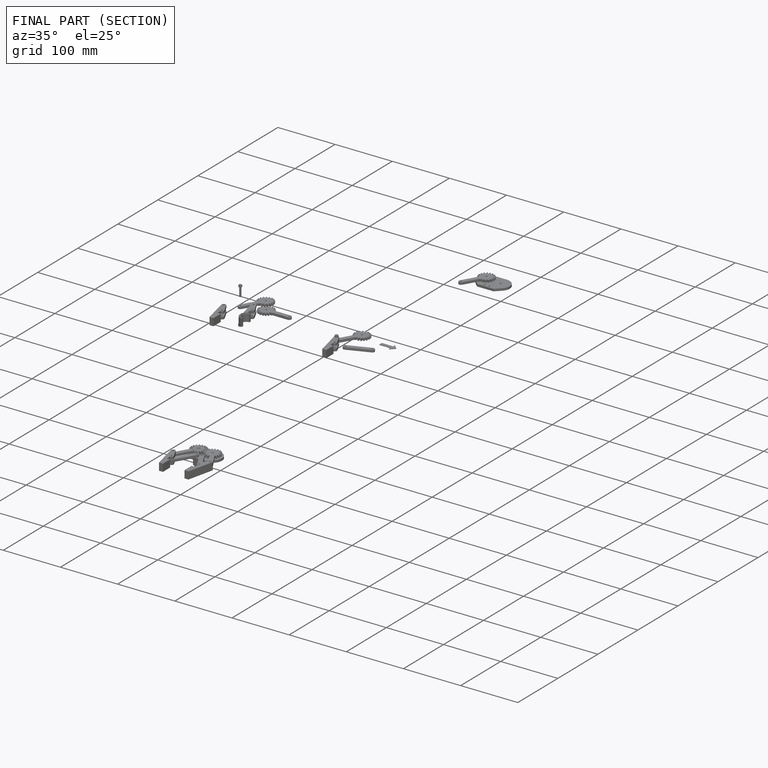
[diagram: finished part — half-section view (interior)]
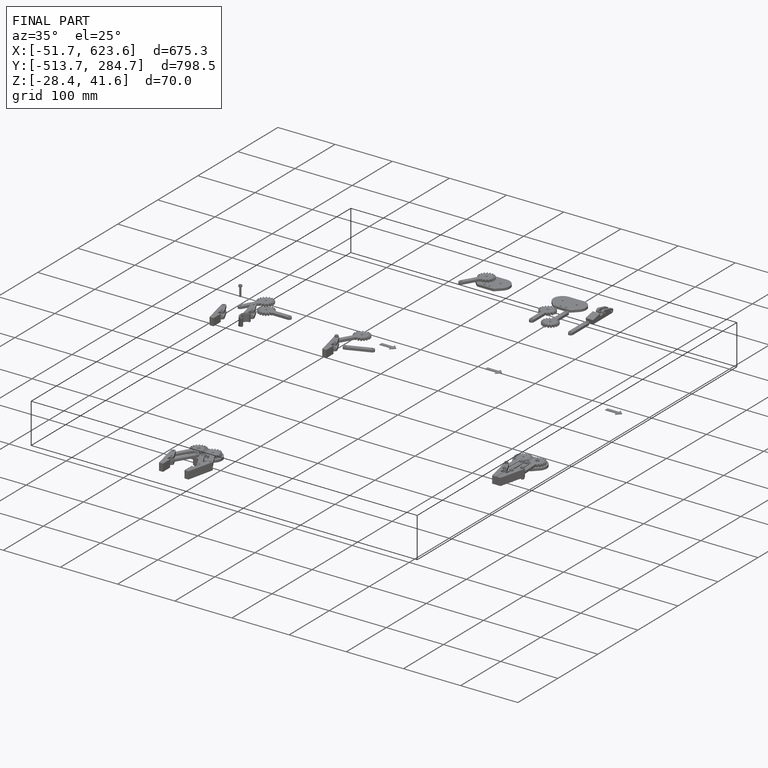
[diagram: finished part — iso view with bounding-box wireframe]
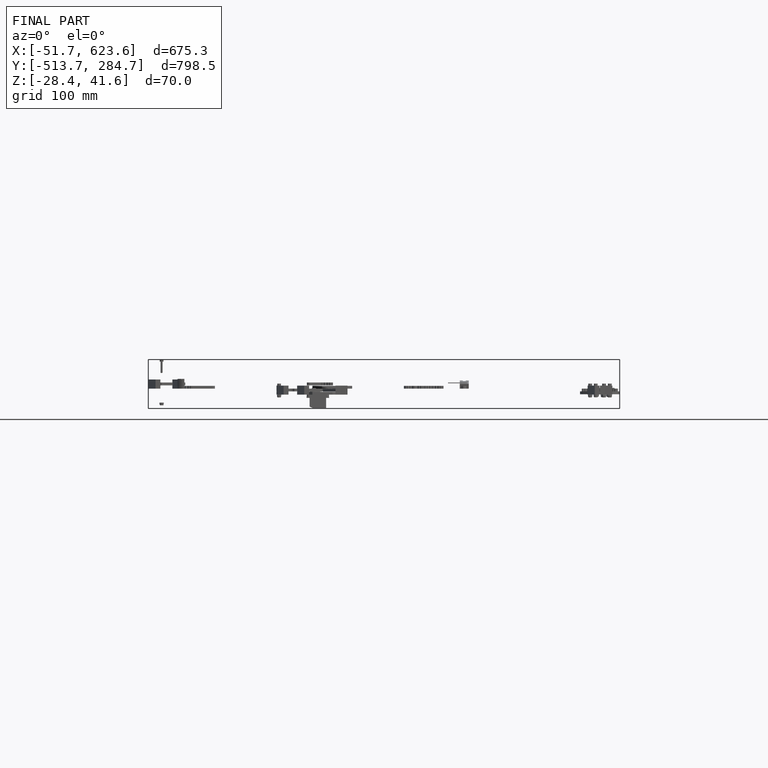
[diagram: finished part — front view with bounding-box wireframe]
